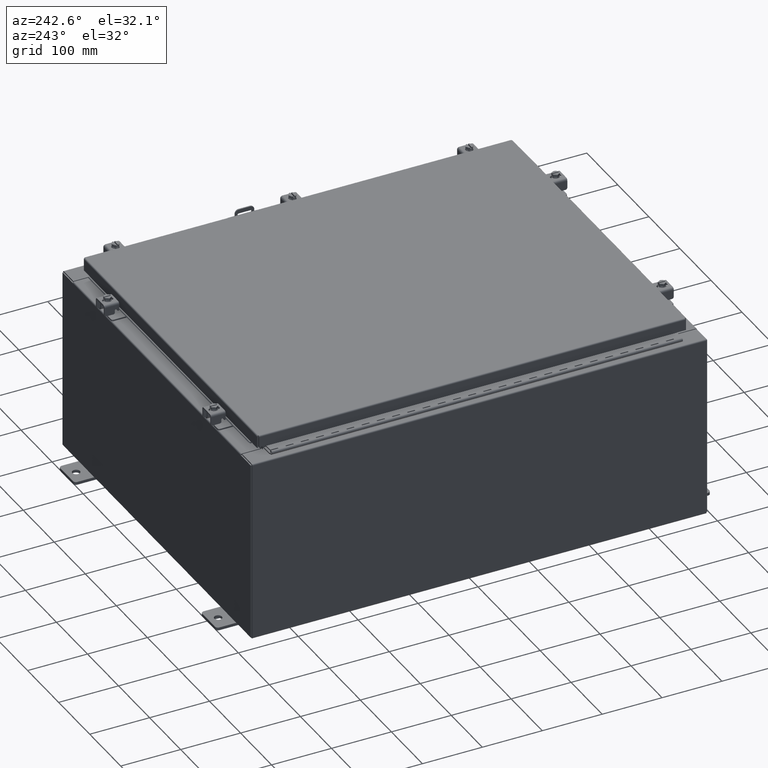
[diagram: clean part render]
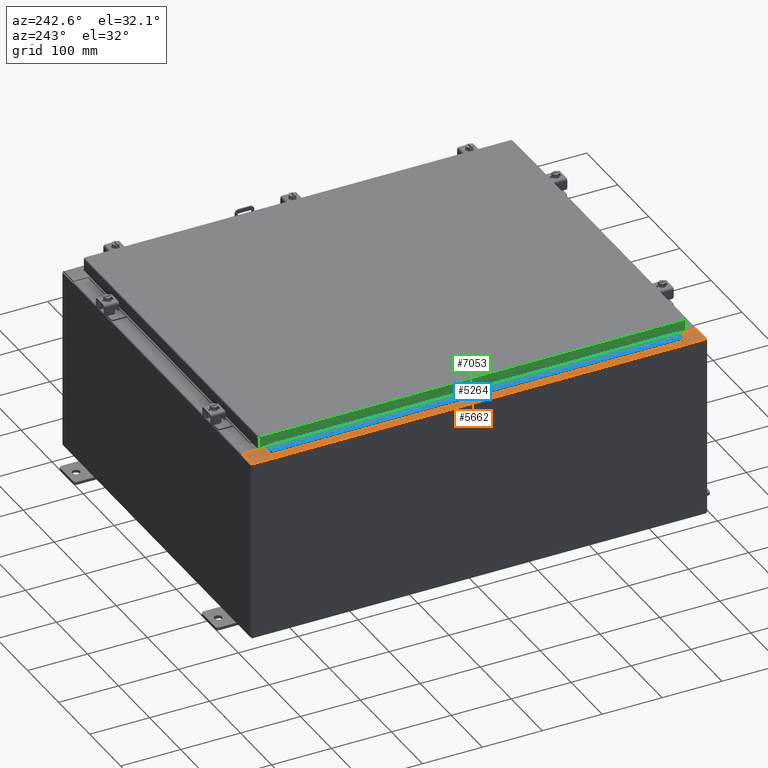
[diagram: same view with three faces highlighted in distinct colors, each labeled with its STEP entity id]
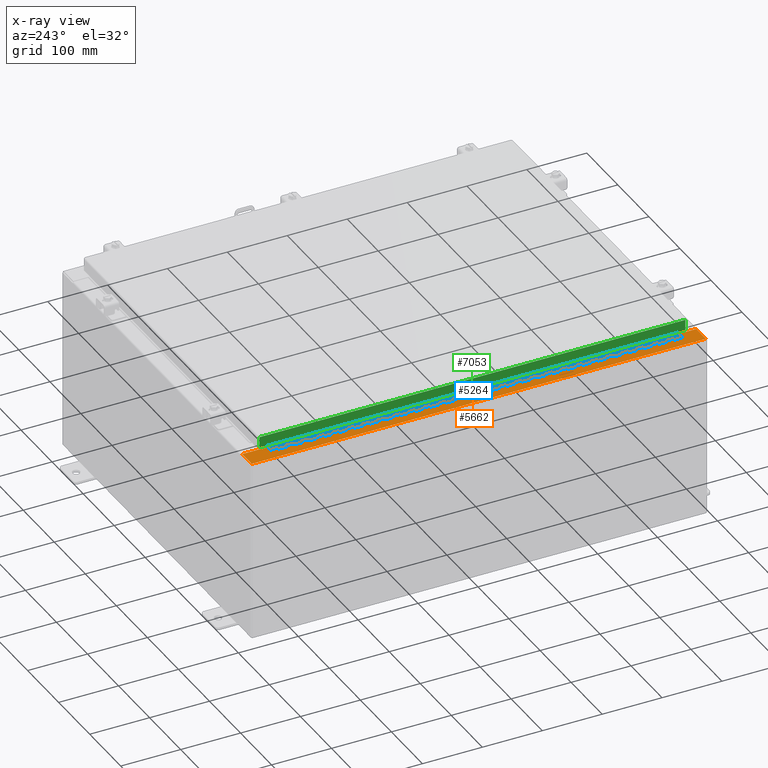
[diagram: x-ray of the same camera — body ghosted, the three highlighted faces saturated]
A machine part, auxiliary view with three faces highlighted in distinct colors.
The next image is the same camera in x-ray (body ghosted, the three faces saturated) — at least one of them is partly hidden behind the body in this view.
Their STEP definitions:

[orange] entity #5662 — the highlighted planar face has unit normal (0, 0, -1).
#957 = AXIS2_PLACEMENT_3D ( 'NONE', #13310, #7814, #4419 ) ;
#1163 = EDGE_CURVE ( 'NONE', #31279, #24333, #28762, .T. ) ;
#1270 = CARTESIAN_POINT ( 'NONE',  ( -10.75005000000005000, 13.59374999999999800, 11.92530000000000900 ) ) ;
#2367 = LINE ( 'NONE', #17380, #2819 ) ;
#2380 = ORIENTED_EDGE ( 'NONE', *, *, #22013, .F. ) ;
#2487 = ORIENTED_EDGE ( 'NONE', *, *, #7257, .F. ) ;
#2819 = VECTOR ( 'NONE', #14252, 39.37007874015748100 ) ;
#3121 = EDGE_CURVE ( 'NONE', #29221, #24333, #17244, .T. ) ;
#3912 = CARTESIAN_POINT ( 'NONE',  ( -10.69970000000004800, 14.92530000000000000, 11.92530000000000900 ) ) ;
#4029 = VECTOR ( 'NONE', #19668, 39.37007874015748100 ) ;
#4419 = DIRECTION ( 'NONE',  ( -1.000000000000000000, 0.0000000000000000000, -7.132762385546384700E-015 ) ) ;
#5662 = ADVANCED_FACE ( 'NONE', ( #10960 ), #18664, .F. ) ;
#6503 = LINE ( 'NONE', #24648, #7437 ) ;
#6684 = ORIENTED_EDGE ( 'NONE', *, *, #30043, .F. ) ;
#7093 = VECTOR ( 'NONE', #34444, 39.37007874015748100 ) ;
#7257 = EDGE_CURVE ( 'NONE', #32391, #29869, #17664, .T. ) ;
#7437 = VECTOR ( 'NONE', #28192, 39.37007874015748100 ) ;
#7814 = DIRECTION ( 'NONE',  ( 7.132762385546384700E-015, 0.0000000000000000000, -1.000000000000000000 ) ) ;
#8028 = ORIENTED_EDGE ( 'NONE', *, *, #28779, .T. ) ;
#8492 = LINE ( 'NONE', #9347, #7093 ) ;
#9316 = CARTESIAN_POINT ( 'NONE',  ( -10.75005000000005000, -13.63109999999999800, 11.92530000000000900 ) ) ;
#9347 = CARTESIAN_POINT ( 'NONE',  ( -10.69970000000004800, 0.0000000000000000000, 11.92530000000000900 ) ) ;
#9754 = VECTOR ( 'NONE', #13338, 39.37007874015748100 ) ;
#9882 = DIRECTION ( 'NONE',  ( -7.132762385546384700E-015, -0.0000000000000000000, 1.000000000000000000 ) ) ;
#10174 = ORIENTED_EDGE ( 'NONE', *, *, #15887, .F. ) ;
#10960 = FACE_OUTER_BOUND ( 'NONE', #25418, .T. ) ;
#11166 = DIRECTION ( 'NONE',  ( 1.000000000000000000, 0.0000000000000000000, 0.0000000000000000000 ) ) ;
#11168 = AXIS2_PLACEMENT_3D ( 'NONE', #27435, #36267, #11166 ) ;
#11406 = DIRECTION ( 'NONE',  ( -1.000000000000000000, -4.340572780399910900E-014, 0.0000000000000000000 ) ) ;
#12190 = VERTEX_POINT ( 'NONE', #22343 ) ;
#12709 = VECTOR ( 'NONE', #19064, 39.37007874015748100 ) ;
#13310 = CARTESIAN_POINT ( 'NONE',  ( -8.532114493236847900E-014, 0.0000000000000000000, 11.92530000000008500 ) ) ;
#13338 = DIRECTION ( 'NONE',  ( 0.0000000000000000000, 1.000000000000000000, 0.0000000000000000000 ) ) ;
#13694 = LINE ( 'NONE', #1270, #4029 ) ;
#14252 = DIRECTION ( 'NONE',  ( -1.000000000000000000, 0.0000000000000000000, 0.0000000000000000000 ) ) ;
#14334 = LINE ( 'NONE', #29076, #9754 ) ;
#14602 = AXIS2_PLACEMENT_3D ( 'NONE', #32620, #9882, #35205 ) ;
#14618 = LINE ( 'NONE', #26627, #15175 ) ;
#14770 = ORIENTED_EDGE ( 'NONE', *, *, #19421, .F. ) ;
#15175 = VECTOR ( 'NONE', #26713, 39.37007874015748100 ) ;
#15887 = EDGE_CURVE ( 'NONE', #36556, #18773, #14618, .T. ) ;
#16782 = VERTEX_POINT ( 'NONE', #37218 ) ;
#17244 = LINE ( 'NONE', #26316, #36140 ) ;
#17380 = CARTESIAN_POINT ( 'NONE',  ( -10.71270000000005000, -13.59375000000000000, 11.92530000000000900 ) ) ;
#17664 = CIRCLE ( 'NONE', #11168, 0.01867499999999949400 ) ;
#18259 = EDGE_CURVE ( 'NONE', #12190, #33323, #2367, .T. ) ;
#18421 = ORIENTED_EDGE ( 'NONE', *, *, #24198, .T. ) ;
#18664 = PLANE ( 'NONE',  #957 ) ;
#18773 = VERTEX_POINT ( 'NONE', #22322 ) ;
#18954 = CARTESIAN_POINT ( 'NONE',  ( -10.71270000000005000, 13.59375000000000000, 11.92530000000000900 ) ) ;
#19064 = DIRECTION ( 'NONE',  ( -0.0000000000000000000, -1.000000000000000000, -0.0000000000000000000 ) ) ;
#19390 = VERTEX_POINT ( 'NONE', #19865 ) ;
#19421 = EDGE_CURVE ( 'NONE', #16782, #32391, #21797, .T. ) ;
#19668 = DIRECTION ( 'NONE',  ( 1.000000000000000000, 0.0000000000000000000, 0.0000000000000000000 ) ) ;
#19865 = CARTESIAN_POINT ( 'NONE',  ( -10.69970000000004800, -14.92530000000000000, 11.92530000000000900 ) ) ;
#20124 = CARTESIAN_POINT ( 'NONE',  ( -10.75005000000005000, 13.59374999999999800, 11.92530000000000900 ) ) ;
#20496 = CARTESIAN_POINT ( 'NONE',  ( -10.75005000000005000, 13.63109999999999600, 11.92530000000000900 ) ) ;
#20847 = EDGE_CURVE ( 'NONE', #29221, #19390, #6503, .T. ) ;
#20953 = CARTESIAN_POINT ( 'NONE',  ( -11.91230000000004600, 14.92530000000000000, 11.92530000000000000 ) ) ;
#21407 = VECTOR ( 'NONE', #11406, 39.37007874015748100 ) ;
#21797 = LINE ( 'NONE', #36981, #21407 ) ;
#22013 = EDGE_CURVE ( 'NONE', #29869, #27558, #13694, .T. ) ;
#22024 = LINE ( 'NONE', #18954, #12709 ) ;
#22322 = CARTESIAN_POINT ( 'NONE',  ( -10.69970000000004800, -13.63110000000000200, 11.92530000000000900 ) ) ;
#22343 = CARTESIAN_POINT ( 'NONE',  ( -10.71270000000005000, -13.59375000000000000, 11.92530000000000900 ) ) ;
#23782 = VECTOR ( 'NONE', #28349, 39.37007874015748100 ) ;
#24044 = ORIENTED_EDGE ( 'NONE', *, *, #34295, .F. ) ;
#24198 = EDGE_CURVE ( 'NONE', #16782, #31279, #8492, .T. ) ;
#24333 = VERTEX_POINT ( 'NONE', #20953 ) ;
#24648 = CARTESIAN_POINT ( 'NONE',  ( -8.532114493236847900E-014, -14.92530000000000000, 11.92530000000008500 ) ) ;
#25122 = CARTESIAN_POINT ( 'NONE',  ( -11.91230000000004600, -14.92530000000000000, 11.92530000000000000 ) ) ;
#25418 = EDGE_LOOP ( 'NONE', ( #14770, #18421, #33478, #34156, #30618, #8028, #10174, #6684, #36841, #24044, #2380, #2487 ) ) ;
#26308 = DIRECTION ( 'NONE',  ( -0.0000000000000000000, 1.000000000000000000, -0.0000000000000000000 ) ) ;
#26316 = CARTESIAN_POINT ( 'NONE',  ( -11.91230000000004600, 14.92530000000000000, 11.92530000000000000 ) ) ;
#26627 = CARTESIAN_POINT ( 'NONE',  ( -10.75005000000005000, -13.63109999999999800, 11.92530000000000900 ) ) ;
#26713 = DIRECTION ( 'NONE',  ( 1.000000000000000000, 0.0000000000000000000, 0.0000000000000000000 ) ) ;
#27435 = CARTESIAN_POINT ( 'NONE',  ( -10.75005000000005000, 13.61242499999999600, 11.92530000000000900 ) ) ;
#27558 = VERTEX_POINT ( 'NONE', #34631 ) ;
#28192 = DIRECTION ( 'NONE',  ( 1.000000000000000000, -0.0000000000000000000, 7.132762385546384700E-015 ) ) ;
#28349 = DIRECTION ( 'NONE',  ( -1.000000000000000000, 0.0000000000000000000, -7.132762385546384700E-015 ) ) ;
#28400 = CARTESIAN_POINT ( 'NONE',  ( -8.532114493236847900E-014, 14.92530000000000000, 11.92530000000008500 ) ) ;
#28762 = LINE ( 'NONE', #28400, #23782 ) ;
#28779 = EDGE_CURVE ( 'NONE', #19390, #18773, #14334, .T. ) ;
#29076 = CARTESIAN_POINT ( 'NONE',  ( -10.69970000000004800, 0.0000000000000000000, 11.92530000000000900 ) ) ;
#29221 = VERTEX_POINT ( 'NONE', #25122 ) ;
#29869 = VERTEX_POINT ( 'NONE', #20124 ) ;
#30043 = EDGE_CURVE ( 'NONE', #33323, #36556, #34360, .T. ) ;
#30618 = ORIENTED_EDGE ( 'NONE', *, *, #20847, .T. ) ;
#31279 = VERTEX_POINT ( 'NONE', #3912 ) ;
#32391 = VERTEX_POINT ( 'NONE', #20496 ) ;
#32620 = CARTESIAN_POINT ( 'NONE',  ( -10.75005000000005000, -13.61242500000000000, 11.92530000000000900 ) ) ;
#33323 = VERTEX_POINT ( 'NONE', #37743 ) ;
#33478 = ORIENTED_EDGE ( 'NONE', *, *, #1163, .T. ) ;
#34156 = ORIENTED_EDGE ( 'NONE', *, *, #3121, .F. ) ;
#34295 = EDGE_CURVE ( 'NONE', #27558, #12190, #22024, .T. ) ;
#34360 = CIRCLE ( 'NONE', #14602, 0.01867499999999949400 ) ;
#34444 = DIRECTION ( 'NONE',  ( 0.0000000000000000000, 1.000000000000000000, 0.0000000000000000000 ) ) ;
#34631 = CARTESIAN_POINT ( 'NONE',  ( -10.71270000000005000, 13.59374999999999800, 11.92530000000000900 ) ) ;
#35205 = DIRECTION ( 'NONE',  ( 1.000000000000000000, 0.0000000000000000000, 0.0000000000000000000 ) ) ;
#36140 = VECTOR ( 'NONE', #26308, 39.37007874015748100 ) ;
#36267 = DIRECTION ( 'NONE',  ( -7.132762385546384700E-015, -0.0000000000000000000, 1.000000000000000000 ) ) ;
#36556 = VERTEX_POINT ( 'NONE', #9316 ) ;
#36841 = ORIENTED_EDGE ( 'NONE', *, *, #18259, .F. ) ;
#36981 = CARTESIAN_POINT ( 'NONE',  ( -10.69970000000004800, 13.63109999999999800, 11.92530000000000900 ) ) ;
#37218 = CARTESIAN_POINT ( 'NONE',  ( -10.69970000000004800, 13.63109999999999800, 11.92530000000000900 ) ) ;
#37743 = CARTESIAN_POINT ( 'NONE',  ( -10.75005000000005000, -13.59375000000000000, 11.92530000000000900 ) ) ;

[blue] entity #5264 — the highlighted planar face has unit normal (-0, -0, 1).
#46 = DIRECTION ( 'NONE',  ( 3.389037039080723100E-015, 1.000000000000000000, -0.0000000000000000000 ) ) ;
#51 = EDGE_CURVE ( 'NONE', #13973, #22612, #12109, .T. ) ;
#83 = VERTEX_POINT ( 'NONE', #1653 ) ;
#305 = EDGE_CURVE ( 'NONE', #9722, #10773, #27180, .T. ) ;
#356 = EDGE_CURVE ( 'NONE', #15206, #31780, #29818, .T. ) ;
#405 = CARTESIAN_POINT ( 'NONE',  ( -0.6869999999999982800, 0.5504999999999997700, -4.000000000000000000 ) ) ;
#416 = EDGE_CURVE ( 'NONE', #5087, #11043, #36227, .T. ) ;
#431 = CARTESIAN_POINT ( 'NONE',  ( -0.6869999999999978300, 0.6754999999999996600, 0.0000000000000000000 ) ) ;
#446 = AXIS2_PLACEMENT_3D ( 'NONE', #14453, #12408, #8151 ) ;
#529 = EDGE_CURVE ( 'NONE', #14605, #6282, #19822, .T. ) ;
#646 = CARTESIAN_POINT ( 'NONE',  ( -0.6869999999999982800, 0.5504999999999997700, -13.50000000000000000 ) ) ;
#715 = CARTESIAN_POINT ( 'NONE',  ( -0.6869999999999978300, 0.6754999999999996600, -26.50000000000000400 ) ) ;
#808 = CARTESIAN_POINT ( 'NONE',  ( -0.6869999999999982800, 0.5504999999999997700, -20.50000000000000400 ) ) ;
#832 = LINE ( 'NONE', #15081, #37842 ) ;
#842 = LINE ( 'NONE', #9604, #10577 ) ;
#897 = ORIENTED_EDGE ( 'NONE', *, *, #13867, .T. ) ;
#921 = DIRECTION ( 'NONE',  ( 0.0000000000000000000, 0.0000000000000000000, 1.000000000000000000 ) ) ;
#1027 = ORIENTED_EDGE ( 'NONE', *, *, #28355, .T. ) ;
#1156 = ORIENTED_EDGE ( 'NONE', *, *, #10670, .T. ) ;
#1168 = VERTEX_POINT ( 'NONE', #27069 ) ;
#1186 = DIRECTION ( 'NONE',  ( -3.389037039080723100E-015, -1.000000000000000000, 0.0000000000000000000 ) ) ;
#1237 = LINE ( 'NONE', #22951, #30578 ) ;
#1279 = EDGE_CURVE ( 'NONE', #37281, #20590, #27692, .T. ) ;
#1280 = EDGE_CURVE ( 'NONE', #28824, #1168, #36361, .T. ) ;
#1292 = ORIENTED_EDGE ( 'NONE', *, *, #20859, .F. ) ;
#1305 = CARTESIAN_POINT ( 'NONE',  ( -0.6869999999999973900, 0.8004999999999995500, -21.50000000000000400 ) ) ;
#1306 = DIRECTION ( 'NONE',  ( -3.389037039080723100E-015, -1.000000000000000000, 0.0000000000000000000 ) ) ;
#1307 = ORIENTED_EDGE ( 'NONE', *, *, #16616, .T. ) ;
#1310 = LINE ( 'NONE', #19426, #7872 ) ;
#1317 = VECTOR ( 'NONE', #10348, 39.37007874015748100 ) ;
#1336 = CARTESIAN_POINT ( 'NONE',  ( -0.6869999999999973900, 0.8004999999999995500, -16.00000000000000000 ) ) ;
#1351 = CARTESIAN_POINT ( 'NONE',  ( -0.6869999999999978300, 0.6754999999999996600, -27.00000000000000000 ) ) ;
#1353 = ORIENTED_EDGE ( 'NONE', *, *, #6908, .F. ) ;
#1401 = VECTOR ( 'NONE', #14924, 39.37007874015748100 ) ;
#1427 = VECTOR ( 'NONE', #6928, 39.37007874015748100 ) ;
#1451 = ORIENTED_EDGE ( 'NONE', *, *, #14619, .T. ) ;
#1458 = VECTOR ( 'NONE', #27333, 39.37007874015748100 ) ;
#1559 = CARTESIAN_POINT ( 'NONE',  ( -0.6869999999999978300, 0.6754999999999996600, -27.00000000000000000 ) ) ;
#1593 = VECTOR ( 'NONE', #32881, 39.37007874015748100 ) ;
#1607 = ORIENTED_EDGE ( 'NONE', *, *, #20616, .F. ) ;
#1653 = CARTESIAN_POINT ( 'NONE',  ( -0.6869999999999978300, 0.6754999999999996600, -2.500000000000000000 ) ) ;
#1658 = DIRECTION ( 'NONE',  ( -3.389037039080723100E-015, -1.000000000000000000, 0.0000000000000000000 ) ) ;
#1722 = CARTESIAN_POINT ( 'NONE',  ( -0.6869999999999978300, 0.6754999999999996600, -27.00000000000000000 ) ) ;
#1771 = CARTESIAN_POINT ( 'NONE',  ( -0.6869999999999982800, 0.5504999999999997700, -0.5000000000000000000 ) ) ;
#1821 = VECTOR ( 'NONE', #11572, 39.37007874015748100 ) ;
#1831 = ORIENTED_EDGE ( 'NONE', *, *, #12259, .F. ) ;
#1837 = EDGE_CURVE ( 'NONE', #10773, #11046, #28326, .T. ) ;
#1904 = CARTESIAN_POINT ( 'NONE',  ( -0.6869999999999982800, 0.5504999999999997700, -14.99999999999999800 ) ) ;
#1920 = CARTESIAN_POINT ( 'NONE',  ( -0.6869999999999973900, 0.8004999999999995500, -12.49999999999999800 ) ) ;
#2023 = EDGE_CURVE ( 'NONE', #10438, #33674, #34894, .T. ) ;
#2024 = ORIENTED_EDGE ( 'NONE', *, *, #24088, .F. ) ;
#2060 = CARTESIAN_POINT ( 'NONE',  ( -0.6869999999999982800, 0.5504999999999997700, -14.49999999999999800 ) ) ;
#2121 = LINE ( 'NONE', #36820, #1317 ) ;
#2220 = VECTOR ( 'NONE', #5639, 39.37007874015748100 ) ;
#2244 = CARTESIAN_POINT ( 'NONE',  ( -0.6869999999999982800, 0.5504999999999997700, -23.50000000000000000 ) ) ;
#2310 = VECTOR ( 'NONE', #13779, 39.37007874015748100 ) ;
#2332 = VECTOR ( 'NONE', #14450, 39.37007874015748100 ) ;
#2434 = ORIENTED_EDGE ( 'NONE', *, *, #36924, .F. ) ;
#2526 = LINE ( 'NONE', #19194, #2220 ) ;
#2593 = ORIENTED_EDGE ( 'NONE', *, *, #34865, .F. ) ;
#2619 = EDGE_CURVE ( 'NONE', #27440, #5261, #3447, .T. ) ;
#2695 = CARTESIAN_POINT ( 'NONE',  ( -0.6869999999999982800, 0.5504999999999997700, -12.49999999999999800 ) ) ;
#2736 = VECTOR ( 'NONE', #20181, 39.37007874015748100 ) ;
#2773 = ORIENTED_EDGE ( 'NONE', *, *, #22515, .F. ) ;
#2813 = CARTESIAN_POINT ( 'NONE',  ( -0.6869999999999982800, 0.5504999999999997700, -17.00000000000000000 ) ) ;
#2865 = ORIENTED_EDGE ( 'NONE', *, *, #36522, .F. ) ;
#2887 = ORIENTED_EDGE ( 'NONE', *, *, #2910, .F. ) ;
#2910 = EDGE_CURVE ( 'NONE', #21828, #32658, #18317, .T. ) ;
#2965 = CARTESIAN_POINT ( 'NONE',  ( -0.6869999999999973900, 0.8004999999999995500, -20.00000000000000000 ) ) ;
#2967 = CARTESIAN_POINT ( 'NONE',  ( -0.6869999999999982800, 0.5504999999999997700, -2.999999999999999600 ) ) ;
#3088 = CARTESIAN_POINT ( 'NONE',  ( -0.6869999999999998300, 0.07549999999999991400, -27.00000000000000000 ) ) ;
#3103 = VECTOR ( 'NONE', #6382, 39.37007874015748100 ) ;
#3118 = LINE ( 'NONE', #16415, #18967 ) ;
#3135 = LINE ( 'NONE', #6025, #3103 ) ;
#3174 = ORIENTED_EDGE ( 'NONE', *, *, #30790, .F. ) ;
#3175 = DIRECTION ( 'NONE',  ( 0.0000000000000000000, 0.0000000000000000000, 1.000000000000000000 ) ) ;
#3226 = CARTESIAN_POINT ( 'NONE',  ( -0.6869999999999978300, 0.6754999999999996600, -16.50000000000000000 ) ) ;
#3256 = CARTESIAN_POINT ( 'NONE',  ( -0.6869999999999982800, 0.5504999999999997700, -11.00000000000000000 ) ) ;
#3314 = DIRECTION ( 'NONE',  ( -3.389037039080723100E-015, -1.000000000000000000, 0.0000000000000000000 ) ) ;
#3328 = ORIENTED_EDGE ( 'NONE', *, *, #26706, .F. ) ;
#3339 = VECTOR ( 'NONE', #13433, 39.37007874015748100 ) ;
#3351 = CARTESIAN_POINT ( 'NONE',  ( -0.6869999999999973900, 0.8004999999999995500, -24.99999999999999600 ) ) ;
#3414 = LINE ( 'NONE', #18905, #3339 ) ;
#3447 = LINE ( 'NONE', #8512, #10977 ) ;
#3455 = VECTOR ( 'NONE', #36343, 39.37007874015748100 ) ;
#3500 = EDGE_CURVE ( 'NONE', #11555, #13221, #27501, .T. ) ;
#3514 = LINE ( 'NONE', #9680, #10798 ) ;
#3650 = CARTESIAN_POINT ( 'NONE',  ( -0.6869999999999978300, 0.6754999999999996600, -27.00000000000000000 ) ) ;
#3656 = VERTEX_POINT ( 'NONE', #21409 ) ;
#3700 = DIRECTION ( 'NONE',  ( 0.0000000000000000000, -0.0000000000000000000, -1.000000000000000000 ) ) ;
#3709 = DIRECTION ( 'NONE',  ( 0.0000000000000000000, 0.0000000000000000000, 1.000000000000000000 ) ) ;
#3737 = EDGE_CURVE ( 'NONE', #35291, #18518, #27130, .T. ) ;
#3794 = DIRECTION ( 'NONE',  ( 0.0000000000000000000, 0.0000000000000000000, 1.000000000000000000 ) ) ;
#3795 = CARTESIAN_POINT ( 'NONE',  ( -0.6869999999999978300, 0.6754999999999996600, -27.00000000000000000 ) ) ;
#3840 = EDGE_CURVE ( 'NONE', #8994, #9665, #15399, .T. ) ;
#3878 = CARTESIAN_POINT ( 'NONE',  ( -0.6869999999999982800, 0.5504999999999997700, -1.499999999999999800 ) ) ;
#3951 = VECTOR ( 'NONE', #11926, 39.37007874015748100 ) ;
#4062 = CARTESIAN_POINT ( 'NONE',  ( -0.6869999999999982800, 0.5504999999999997700, -17.50000000000000000 ) ) ;
#4212 = ORIENTED_EDGE ( 'NONE', *, *, #22649, .F. ) ;
#4278 = CARTESIAN_POINT ( 'NONE',  ( -0.6869999999999978300, 0.6754999999999996600, -23.50000000000000000 ) ) ;
#4338 = VECTOR ( 'NONE', #9975, 39.37007874015748100 ) ;
#4387 = CARTESIAN_POINT ( 'NONE',  ( -0.6869999999999982800, 0.5504999999999997700, -12.99999999999999800 ) ) ;
#4427 = VECTOR ( 'NONE', #15605, 39.37007874015748100 ) ;
#4486 = VECTOR ( 'NONE', #27618, 39.37007874015748100 ) ;
#4579 = LINE ( 'NONE', #2965, #4338 ) ;
#4615 = VECTOR ( 'NONE', #27925, 39.37007874015748100 ) ;
#4630 = CARTESIAN_POINT ( 'NONE',  ( -0.6869999999999978300, 0.6754999999999996600, -7.499999999999999100 ) ) ;
#4658 = ORIENTED_EDGE ( 'NONE', *, *, #13242, .T. ) ;
#4686 = LINE ( 'NONE', #16046, #4615 ) ;
#4717 = CARTESIAN_POINT ( 'NONE',  ( -0.6869999999999978300, 0.6754999999999996600, -1.499999999999999800 ) ) ;
#4726 = VERTEX_POINT ( 'NONE', #12639 ) ;
#4758 = LINE ( 'NONE', #9910, #13491 ) ;
#4859 = VECTOR ( 'NONE', #28820, 39.37007874015748100 ) ;
#4877 = ORIENTED_EDGE ( 'NONE', *, *, #305, .F. ) ;
#4963 = ORIENTED_EDGE ( 'NONE', *, *, #11056, .F. ) ;
#4964 = CARTESIAN_POINT ( 'NONE',  ( -0.6869999999999973900, 0.8004999999999995500, -23.50000000000000000 ) ) ;
#5027 = LINE ( 'NONE', #17885, #36427 ) ;
#5087 = VERTEX_POINT ( 'NONE', #3256 ) ;
#5108 = LINE ( 'NONE', #13654, #24979 ) ;
#5114 = CARTESIAN_POINT ( 'NONE',  ( -0.6869999999999978300, 0.6754999999999996600, -16.00000000000000000 ) ) ;
#5156 = CARTESIAN_POINT ( 'NONE',  ( -0.6869999999999982800, 0.5504999999999997700, -17.99999999999999600 ) ) ;
#5181 = ORIENTED_EDGE ( 'NONE', *, *, #26256, .F. ) ;
#5195 = ORIENTED_EDGE ( 'NONE', *, *, #23821, .F. ) ;
#5222 = LINE ( 'NONE', #16692, #3951 ) ;
#5242 = CARTESIAN_POINT ( 'NONE',  ( -0.6869999999999982800, 0.5504999999999997700, -3.500000000000000000 ) ) ;
#5261 = VERTEX_POINT ( 'NONE', #2813 ) ;
#5264 = ADVANCED_FACE ( 'NONE', ( #14930 ), #20854, .T. ) ;
#5296 = LINE ( 'NONE', #15454, #25435 ) ;
#5399 = EDGE_CURVE ( 'NONE', #5261, #15712, #6178, .T. ) ;
#5499 = CARTESIAN_POINT ( 'NONE',  ( -0.6869999999999973900, 0.8004999999999995500, -15.50000000000000000 ) ) ;
#5510 = CARTESIAN_POINT ( 'NONE',  ( -0.6869999999999982800, 0.5504999999999997700, -20.00000000000000000 ) ) ;
#5513 = EDGE_CURVE ( 'NONE', #34915, #15827, #13187, .T. ) ;
#5582 = LINE ( 'NONE', #31435, #5999 ) ;
#5625 = CARTESIAN_POINT ( 'NONE',  ( -0.6869999999999973900, 0.8004999999999995500, -17.50000000000000000 ) ) ;
#5639 = DIRECTION ( 'NONE',  ( 0.0000000000000000000, 0.0000000000000000000, 1.000000000000000000 ) ) ;
#5746 = LINE ( 'NONE', #1559, #26563 ) ;
#5789 = VECTOR ( 'NONE', #36298, 39.37007874015748100 ) ;
#5825 = ORIENTED_EDGE ( 'NONE', *, *, #31801, .F. ) ;
#5857 = VECTOR ( 'NONE', #8931, 39.37007874015748100 ) ;
#5903 = DIRECTION ( 'NONE',  ( -3.389037039080723100E-015, -1.000000000000000000, 0.0000000000000000000 ) ) ;
#5999 = VECTOR ( 'NONE', #27859, 39.37007874015748100 ) ;
#6025 = CARTESIAN_POINT ( 'NONE',  ( -0.6869999999999973900, 0.8004999999999995500, -4.500000000000000000 ) ) ;
#6051 = VECTOR ( 'NONE', #13712, 39.37007874015748100 ) ;
#6070 = ORIENTED_EDGE ( 'NONE', *, *, #28215, .F. ) ;
#6118 = LINE ( 'NONE', #15159, #1427 ) ;
#6133 = CARTESIAN_POINT ( 'NONE',  ( -0.6869999999999973900, 0.8004999999999995500, -25.50000000000000400 ) ) ;
#6168 = ORIENTED_EDGE ( 'NONE', *, *, #529, .F. ) ;
#6178 = LINE ( 'NONE', #7341, #1401 ) ;
#6227 = ORIENTED_EDGE ( 'NONE', *, *, #16613, .F. ) ;
#6229 = ORIENTED_EDGE ( 'NONE', *, *, #18434, .F. ) ;
#6282 = VERTEX_POINT ( 'NONE', #15073 ) ;
#6298 = LINE ( 'NONE', #3351, #1458 ) ;
#6312 = CARTESIAN_POINT ( 'NONE',  ( -0.6869999999999978300, 0.6754999999999996600, -6.000000000000000900 ) ) ;
#6336 = LINE ( 'NONE', #3795, #17926 ) ;
#6346 = ORIENTED_EDGE ( 'NONE', *, *, #37146, .F. ) ;
#6347 = DIRECTION ( 'NONE',  ( 0.0000000000000000000, -0.0000000000000000000, -1.000000000000000000 ) ) ;
#6374 = LINE ( 'NONE', #24084, #18733 ) ;
#6382 = DIRECTION ( 'NONE',  ( -3.389037039080723100E-015, -1.000000000000000000, 0.0000000000000000000 ) ) ;
#6423 = DIRECTION ( 'NONE',  ( 3.389037039080723100E-015, 1.000000000000000000, -0.0000000000000000000 ) ) ;
#6490 = CARTESIAN_POINT ( 'NONE',  ( -0.6869999999999978300, 0.6754999999999996600, -8.500000000000000000 ) ) ;
#6686 = VERTEX_POINT ( 'NONE', #23940 ) ;
#6709 = VECTOR ( 'NONE', #36197, 39.37007874015748100 ) ;
#6743 = VECTOR ( 'NONE', #26915, 39.37007874015748100 ) ;
#6903 = LINE ( 'NONE', #21400, #8301 ) ;
#6908 = EDGE_CURVE ( 'NONE', #31000, #17090, #20754, .T. ) ;
#6927 = CARTESIAN_POINT ( 'NONE',  ( -0.6869999999999982800, 0.5504999999999997700, -15.50000000000000000 ) ) ;
#6928 = DIRECTION ( 'NONE',  ( 3.389037039080723100E-015, 1.000000000000000000, -0.0000000000000000000 ) ) ;
#6930 = EDGE_CURVE ( 'NONE', #35057, #33517, #31923, .T. ) ;
#6985 = VECTOR ( 'NONE', #26311, 39.37007874015748100 ) ;
#6987 = VERTEX_POINT ( 'NONE', #15158 ) ;
#7035 = DIRECTION ( 'NONE',  ( 0.0000000000000000000, -0.0000000000000000000, -1.000000000000000000 ) ) ;
#7156 = CARTESIAN_POINT ( 'NONE',  ( -0.6869999999999973900, 0.8004999999999995500, -4.000000000000000000 ) ) ;
#7158 = VECTOR ( 'NONE', #37838, 39.37007874015748100 ) ;
#7212 = DIRECTION ( 'NONE',  ( 3.389037039080723100E-015, 1.000000000000000000, -0.0000000000000000000 ) ) ;
#7229 = LINE ( 'NONE', #37792, #7158 ) ;
#7243 = CARTESIAN_POINT ( 'NONE',  ( -0.6869999999999978300, 0.6754999999999996600, -21.50000000000000400 ) ) ;
#7269 = LINE ( 'NONE', #37758, #6709 ) ;
#7341 = CARTESIAN_POINT ( 'NONE',  ( -0.6869999999999973900, 0.8004999999999995500, -17.00000000000000000 ) ) ;
#7493 = CARTESIAN_POINT ( 'NONE',  ( -0.6869999999999982800, 0.5504999999999997700, -11.50000000000000000 ) ) ;
#7518 = EDGE_CURVE ( 'NONE', #21804, #15206, #5108, .T. ) ;
#7693 = ORIENTED_EDGE ( 'NONE', *, *, #10519, .T. ) ;
#7765 = CARTESIAN_POINT ( 'NONE',  ( -0.6869999999999982800, 0.5504999999999997700, -22.00000000000000000 ) ) ;
#7781 = VECTOR ( 'NONE', #31077, 39.37007874015748100 ) ;
#7807 = LINE ( 'NONE', #21755, #8599 ) ;
#7872 = VECTOR ( 'NONE', #1306, 39.37007874015748100 ) ;
#7897 = EDGE_CURVE ( 'NONE', #17211, #37205, #6374, .T. ) ;
#7911 = CARTESIAN_POINT ( 'NONE',  ( -0.6869999999999978300, 0.6754999999999996600, -17.50000000000000000 ) ) ;
#7914 = CARTESIAN_POINT ( 'NONE',  ( -0.6869999999999982800, 0.5504999999999997700, -17.50000000000000000 ) ) ;
#7987 = VERTEX_POINT ( 'NONE', #5242 ) ;
#8151 = DIRECTION ( 'NONE',  ( 3.369016658928398200E-015, 1.000000000000000000, 0.0000000000000000000 ) ) ;
#8301 = VECTOR ( 'NONE', #32272, 39.37007874015748100 ) ;
#8357 = LINE ( 'NONE', #28340, #7781 ) ;
#8370 = VERTEX_POINT ( 'NONE', #23954 ) ;
#8380 = LINE ( 'NONE', #31327, #36283 ) ;
#8393 = VERTEX_POINT ( 'NONE', #18109 ) ;
#8512 = CARTESIAN_POINT ( 'NONE',  ( -0.6869999999999982800, 0.5504999999999997700, -16.50000000000000000 ) ) ;
#8578 = CARTESIAN_POINT ( 'NONE',  ( -0.6869999999999973900, 0.8004999999999995500, -5.500000000000000000 ) ) ;
#8583 = EDGE_CURVE ( 'NONE', #18582, #35864, #24072, .T. ) ;
#8596 = CARTESIAN_POINT ( 'NONE',  ( -0.6869999999999982800, 0.5504999999999997700, -9.000000000000000000 ) ) ;
#8599 = VECTOR ( 'NONE', #6347, 39.37007874015748100 ) ;
#8619 = VERTEX_POINT ( 'NONE', #10902 ) ;
#8697 = ORIENTED_EDGE ( 'NONE', *, *, #1279, .F. ) ;
#8725 = LINE ( 'NONE', #2695, #18732 ) ;
#8777 = CARTESIAN_POINT ( 'NONE',  ( -0.6869999999999982800, 0.5504999999999997700, -11.99999999999999800 ) ) ;
#8797 = CARTESIAN_POINT ( 'NONE',  ( -0.6869999999999982800, 0.5504999999999997700, -25.50000000000000400 ) ) ;
#8809 = ORIENTED_EDGE ( 'NONE', *, *, #17871, .F. ) ;
#8931 = DIRECTION ( 'NONE',  ( 0.0000000000000000000, 0.0000000000000000000, 1.000000000000000000 ) ) ;
#8965 = ORIENTED_EDGE ( 'NONE', *, *, #18541, .F. ) ;
#8994 = VERTEX_POINT ( 'NONE', #1904 ) ;
#9103 = ORIENTED_EDGE ( 'NONE', *, *, #32567, .T. ) ;
#9124 = CARTESIAN_POINT ( 'NONE',  ( -0.6869999999999973900, 0.8004999999999995500, -8.000000000000000000 ) ) ;
#9165 = ORIENTED_EDGE ( 'NONE', *, *, #25021, .F. ) ;
#9485 = VERTEX_POINT ( 'NONE', #15897 ) ;
#9500 = VECTOR ( 'NONE', #29743, 39.37007874015748100 ) ;
#9604 = CARTESIAN_POINT ( 'NONE',  ( -0.6869999999999973900, 0.8004999999999995500, -24.50000000000000000 ) ) ;
#9613 = VECTOR ( 'NONE', #1186, 39.37007874015748100 ) ;
#9646 = CARTESIAN_POINT ( 'NONE',  ( -0.6869999999999978300, 0.6754999999999996600, -17.99999999999999600 ) ) ;
#9665 = VERTEX_POINT ( 'NONE', #37446 ) ;
#9680 = CARTESIAN_POINT ( 'NONE',  ( -0.6869999999999973900, 0.8004999999999995500, -6.499999999999999100 ) ) ;
#9695 = VERTEX_POINT ( 'NONE', #37103 ) ;
#9722 = VERTEX_POINT ( 'NONE', #35693 ) ;
#9753 = LINE ( 'NONE', #22238, #2332 ) ;
#9762 = VECTOR ( 'NONE', #12588, 39.37007874015748100 ) ;
#9773 = ORIENTED_EDGE ( 'NONE', *, *, #35584, .T. ) ;
#9876 = ORIENTED_EDGE ( 'NONE', *, *, #15221, .F. ) ;
#9893 = CARTESIAN_POINT ( 'NONE',  ( -0.6869999999999982800, 0.5504999999999997700, -21.50000000000000400 ) ) ;
#9910 = CARTESIAN_POINT ( 'NONE',  ( -0.6869999999999982800, 0.5504999999999997700, -2.500000000000000000 ) ) ;
#9975 = DIRECTION ( 'NONE',  ( 3.389037039080723100E-015, 1.000000000000000000, -0.0000000000000000000 ) ) ;
#10014 = ORIENTED_EDGE ( 'NONE', *, *, #28459, .F. ) ;
#10106 = CARTESIAN_POINT ( 'NONE',  ( -0.6869999999999973900, 0.8004999999999995500, -19.50000000000000000 ) ) ;
#10317 = CARTESIAN_POINT ( 'NONE',  ( -0.6869999999999978300, 0.6754999999999996600, -24.50000000000000000 ) ) ;
#10348 = DIRECTION ( 'NONE',  ( -3.389037039080723100E-015, -1.000000000000000000, 0.0000000000000000000 ) ) ;
#10374 = CARTESIAN_POINT ( 'NONE',  ( -0.6869999999999973900, 0.8004999999999995500, -1.000000000000000000 ) ) ;
#10398 = ORIENTED_EDGE ( 'NONE', *, *, #33338, .F. ) ;
#10438 = VERTEX_POINT ( 'NONE', #7911 ) ;
#10519 = EDGE_CURVE ( 'NONE', #10438, #15712, #28090, .T. ) ;
#10536 = LINE ( 'NONE', #12311, #10907 ) ;
#10577 = VECTOR ( 'NONE', #16417, 39.37007874015748100 ) ;
#10638 = VECTOR ( 'NONE', #16328, 39.37007874015748100 ) ;
#10670 = EDGE_CURVE ( 'NONE', #17179, #11046, #6336, .T. ) ;
#10697 = ORIENTED_EDGE ( 'NONE', *, *, #32553, .T. ) ;
#10760 = VECTOR ( 'NONE', #29883, 39.37007874015748100 ) ;
#10771 = LINE ( 'NONE', #11114, #27274 ) ;
#10773 = VERTEX_POINT ( 'NONE', #14363 ) ;
#10798 = VECTOR ( 'NONE', #14946, 39.37007874015748100 ) ;
#10898 = LINE ( 'NONE', #20629, #12771 ) ;
#10902 = CARTESIAN_POINT ( 'NONE',  ( -0.6869999999999982800, 0.5504999999999997700, -19.00000000000000000 ) ) ;
#10907 = VECTOR ( 'NONE', #15535, 39.37007874015748100 ) ;
#10931 = EDGE_CURVE ( 'NONE', #17489, #16049, #842, .T. ) ;
#10977 = VECTOR ( 'NONE', #11505, 39.37007874015748100 ) ;
#11043 = VERTEX_POINT ( 'NONE', #25119 ) ;
#11046 = VERTEX_POINT ( 'NONE', #24871 ) ;
#11056 = EDGE_CURVE ( 'NONE', #15827, #4726, #19762, .T. ) ;
#11114 = CARTESIAN_POINT ( 'NONE',  ( -0.6869999999999973900, 0.8004999999999995500, -12.99999999999999800 ) ) ;
#11155 = VERTEX_POINT ( 'NONE', #13731 ) ;
#11183 = CARTESIAN_POINT ( 'NONE',  ( -0.6869999999999978300, 0.6754999999999996600, -10.50000000000000000 ) ) ;
#11337 = VERTEX_POINT ( 'NONE', #36760 ) ;
#11353 = EDGE_CURVE ( 'NONE', #32033, #28621, #35607, .T. ) ;
#11381 = ORIENTED_EDGE ( 'NONE', *, *, #2023, .F. ) ;
#11505 = DIRECTION ( 'NONE',  ( 0.0000000000000000000, -0.0000000000000000000, -1.000000000000000000 ) ) ;
#11555 = VERTEX_POINT ( 'NONE', #22508 ) ;
#11569 = CARTESIAN_POINT ( 'NONE',  ( -0.6869999999999982800, 0.5504999999999997700, -3.500000000000000000 ) ) ;
#11572 = DIRECTION ( 'NONE',  ( 3.389037039080723100E-015, 1.000000000000000000, -0.0000000000000000000 ) ) ;
#11639 = CARTESIAN_POINT ( 'NONE',  ( -0.6869999999999982800, 0.5504999999999997700, -4.500000000000000000 ) ) ;
#11654 = ORIENTED_EDGE ( 'NONE', *, *, #29204, .F. ) ;
#11726 = EDGE_CURVE ( 'NONE', #19104, #9695, #6298, .T. ) ;
#11748 = ORIENTED_EDGE ( 'NONE', *, *, #31522, .F. ) ;
#11792 = CARTESIAN_POINT ( 'NONE',  ( -0.6869999999999978300, 0.6754999999999996600, -23.00000000000000000 ) ) ;
#11842 = VECTOR ( 'NONE', #33715, 39.37007874015748100 ) ;
#11854 = ORIENTED_EDGE ( 'NONE', *, *, #17215, .T. ) ;
#11909 = VERTEX_POINT ( 'NONE', #28372 ) ;
#11926 = DIRECTION ( 'NONE',  ( -3.389037039080723100E-015, -1.000000000000000000, 0.0000000000000000000 ) ) ;
#11980 = CARTESIAN_POINT ( 'NONE',  ( -0.6869999999999973900, 0.8004999999999995500, -13.50000000000000000 ) ) ;
#12008 = DIRECTION ( 'NONE',  ( 3.389037039080723100E-015, 1.000000000000000000, -0.0000000000000000000 ) ) ;
#12056 = ORIENTED_EDGE ( 'NONE', *, *, #3840, .F. ) ;
#12087 = ORIENTED_EDGE ( 'NONE', *, *, #35035, .F. ) ;
#12109 = LINE ( 'NONE', #1920, #22570 ) ;
#12259 = EDGE_CURVE ( 'NONE', #6282, #5087, #35251, .T. ) ;
#12311 = CARTESIAN_POINT ( 'NONE',  ( -0.6869999999999973900, 0.8004999999999995500, -10.00000000000000000 ) ) ;
#12349 = ORIENTED_EDGE ( 'NONE', *, *, #7518, .F. ) ;
#12398 = LINE ( 'NONE', #8578, #22434 ) ;
#12408 = DIRECTION ( 'NONE',  ( 1.000000000000000000, -3.369016658928398200E-015, 0.0000000000000000000 ) ) ;
#12493 = CARTESIAN_POINT ( 'NONE',  ( -0.6869999999999998300, 0.07549999999999991400, 0.0000000000000000000 ) ) ;
#12588 = DIRECTION ( 'NONE',  ( 0.0000000000000000000, -0.0000000000000000000, -1.000000000000000000 ) ) ;
#12639 = CARTESIAN_POINT ( 'NONE',  ( -0.6869999999999978300, 0.6754999999999996600, -5.000000000000000000 ) ) ;
#12771 = VECTOR ( 'NONE', #27567, 39.37007874015748100 ) ;
#12811 = DIRECTION ( 'NONE',  ( 0.0000000000000000000, 0.0000000000000000000, 1.000000000000000000 ) ) ;
#13107 = ORIENTED_EDGE ( 'NONE', *, *, #31461, .F. ) ;
#13138 = DIRECTION ( 'NONE',  ( -3.389037039080723100E-015, -1.000000000000000000, 0.0000000000000000000 ) ) ;
#13187 = LINE ( 'NONE', #11639, #9762 ) ;
#13190 = ORIENTED_EDGE ( 'NONE', *, *, #416, .F. ) ;
#13221 = VERTEX_POINT ( 'NONE', #13786 ) ;
#13242 = EDGE_CURVE ( 'NONE', #21951, #37485, #21886, .T. ) ;
#13383 = EDGE_CURVE ( 'NONE', #33517, #27819, #20413, .T. ) ;
#13413 = CARTESIAN_POINT ( 'NONE',  ( -0.6869999999999978300, 0.6754999999999996600, -2.999999999999999600 ) ) ;
#13433 = DIRECTION ( 'NONE',  ( 0.0000000000000000000, 0.0000000000000000000, 1.000000000000000000 ) ) ;
#13472 = VECTOR ( 'NONE', #46, 39.37007874015748100 ) ;
#13491 = VECTOR ( 'NONE', #24684, 39.37007874015748100 ) ;
#13501 = ORIENTED_EDGE ( 'NONE', *, *, #34238, .T. ) ;
#13508 = EDGE_CURVE ( 'NONE', #28684, #11043, #14395, .T. ) ;
#13509 = LINE ( 'NONE', #34319, #13472 ) ;
#13536 = CARTESIAN_POINT ( 'NONE',  ( -0.6869999999999982800, 0.5504999999999997700, -26.00000000000000000 ) ) ;
#13576 = ORIENTED_EDGE ( 'NONE', *, *, #22361, .T. ) ;
#13654 = CARTESIAN_POINT ( 'NONE',  ( -0.6869999999999982800, 0.5504999999999997700, -21.50000000000000400 ) ) ;
#13689 = LINE ( 'NONE', #1771, #31407 ) ;
#13712 = DIRECTION ( 'NONE',  ( 3.389037039080723100E-015, 1.000000000000000000, -0.0000000000000000000 ) ) ;
#13731 = CARTESIAN_POINT ( 'NONE',  ( -0.6869999999999982800, 0.5504999999999997700, -6.000000000000000900 ) ) ;
#13779 = DIRECTION ( 'NONE',  ( 0.0000000000000000000, 0.0000000000000000000, 1.000000000000000000 ) ) ;
#13786 = CARTESIAN_POINT ( 'NONE',  ( -0.6869999999999978300, 0.6754999999999996600, -1.000000000000000000 ) ) ;
#13829 = VECTOR ( 'NONE', #21419, 39.37007874015748100 ) ;
#13840 = ORIENTED_EDGE ( 'NONE', *, *, #3737, .F. ) ;
#13867 = EDGE_CURVE ( 'NONE', #26973, #32678, #15332, .T. ) ;
#13876 = LINE ( 'NONE', #22680, #9613 ) ;
#13892 = CARTESIAN_POINT ( 'NONE',  ( -0.6869999999999982800, 0.5504999999999997700, -18.50000000000000000 ) ) ;
#13914 = CARTESIAN_POINT ( 'NONE',  ( -0.6869999999999978300, 0.6754999999999996600, -27.00000000000000000 ) ) ;
#13949 = ORIENTED_EDGE ( 'NONE', *, *, #1280, .T. ) ;
#13973 = VERTEX_POINT ( 'NONE', #33553 ) ;
#14090 = VERTEX_POINT ( 'NONE', #31843 ) ;
#14108 = DIRECTION ( 'NONE',  ( 0.0000000000000000000, 0.0000000000000000000, 1.000000000000000000 ) ) ;
#14121 = DIRECTION ( 'NONE',  ( 0.0000000000000000000, 0.0000000000000000000, 1.000000000000000000 ) ) ;
#14122 = VECTOR ( 'NONE', #18603, 39.37007874015748100 ) ;
#14174 = ORIENTED_EDGE ( 'NONE', *, *, #27073, .F. ) ;
#14318 = DIRECTION ( 'NONE',  ( -3.389037039080723100E-015, -1.000000000000000000, 0.0000000000000000000 ) ) ;
#14363 = CARTESIAN_POINT ( 'NONE',  ( -0.6869999999999982800, 0.5504999999999997700, -8.000000000000000000 ) ) ;
#14395 = LINE ( 'NONE', #29237, #18769 ) ;
#14450 = DIRECTION ( 'NONE',  ( 0.0000000000000000000, 0.0000000000000000000, 1.000000000000000000 ) ) ;
#14453 = CARTESIAN_POINT ( 'NONE',  ( -0.6870000000000022800, -0.6245000000000003900, -27.00000000000000000 ) ) ;
#14516 = EDGE_CURVE ( 'NONE', #11155, #16975, #4686, .T. ) ;
#14534 = EDGE_CURVE ( 'NONE', #32893, #37485, #4579, .T. ) ;
#14588 = LINE ( 'NONE', #1305, #3455 ) ;
#14605 = VERTEX_POINT ( 'NONE', #11183 ) ;
#14619 = EDGE_CURVE ( 'NONE', #35775, #16975, #3414, .T. ) ;
#14648 = DIRECTION ( 'NONE',  ( 0.0000000000000000000, -0.0000000000000000000, -1.000000000000000000 ) ) ;
#14759 = LINE ( 'NONE', #7493, #36351 ) ;
#14771 = ORIENTED_EDGE ( 'NONE', *, *, #23792, .F. ) ;
#14874 = DIRECTION ( 'NONE',  ( -3.389037039080723100E-015, -1.000000000000000000, 0.0000000000000000000 ) ) ;
#14884 = DIRECTION ( 'NONE',  ( -3.389037039080723100E-015, -1.000000000000000000, 0.0000000000000000000 ) ) ;
#14900 = EDGE_CURVE ( 'NONE', #23597, #32293, #10771, .T. ) ;
#14903 = VECTOR ( 'NONE', #23608, 39.37007874015748100 ) ;
#14910 = DIRECTION ( 'NONE',  ( 0.0000000000000000000, 0.0000000000000000000, 1.000000000000000000 ) ) ;
#14924 = DIRECTION ( 'NONE',  ( 3.389037039080723100E-015, 1.000000000000000000, -0.0000000000000000000 ) ) ;
#14930 = FACE_OUTER_BOUND ( 'NONE', #31151, .T. ) ;
#14946 = DIRECTION ( 'NONE',  ( -3.389037039080723100E-015, -1.000000000000000000, 0.0000000000000000000 ) ) ;
#15020 = CARTESIAN_POINT ( 'NONE',  ( -0.6869999999999973900, 0.8004999999999995500, -26.50000000000000400 ) ) ;
#15037 = CARTESIAN_POINT ( 'NONE',  ( -0.6869999999999978300, 0.6754999999999996600, -20.50000000000000400 ) ) ;
#15043 = CARTESIAN_POINT ( 'NONE',  ( -0.6869999999999978300, 0.6754999999999996600, -27.00000000000000000 ) ) ;
#15073 = CARTESIAN_POINT ( 'NONE',  ( -0.6869999999999982800, 0.5504999999999997700, -10.50000000000000000 ) ) ;
#15081 = CARTESIAN_POINT ( 'NONE',  ( -0.6869999999999978300, 0.6754999999999996600, -27.00000000000000000 ) ) ;
#15086 = ORIENTED_EDGE ( 'NONE', *, *, #37378, .F. ) ;
#15158 = CARTESIAN_POINT ( 'NONE',  ( -0.6869999999999982800, 0.5504999999999997700, -14.00000000000000000 ) ) ;
#15159 = CARTESIAN_POINT ( 'NONE',  ( -0.6869999999999973900, 0.8004999999999995500, -17.99999999999999600 ) ) ;
#15206 = VERTEX_POINT ( 'NONE', #7765 ) ;
#15221 = EDGE_CURVE ( 'NONE', #37789, #28887, #24942, .T. ) ;
#15332 = LINE ( 'NONE', #19019, #14903 ) ;
#15362 = ORIENTED_EDGE ( 'NONE', *, *, #3500, .F. ) ;
#15370 = VECTOR ( 'NONE', #25382, 39.37007874015748100 ) ;
#15380 = ORIENTED_EDGE ( 'NONE', *, *, #13508, .T. ) ;
#15399 = LINE ( 'NONE', #26507, #6051 ) ;
#15446 = VERTEX_POINT ( 'NONE', #3226 ) ;
#15454 = CARTESIAN_POINT ( 'NONE',  ( -0.6869999999999973900, 0.8004999999999995500, -2.500000000000000000 ) ) ;
#15535 = DIRECTION ( 'NONE',  ( 3.389037039080723100E-015, 1.000000000000000000, -0.0000000000000000000 ) ) ;
#15558 = CARTESIAN_POINT ( 'NONE',  ( -0.6869999999999973900, 0.8004999999999995500, -3.500000000000000000 ) ) ;
#15605 = DIRECTION ( 'NONE',  ( -3.389037039080723100E-015, -1.000000000000000000, 0.0000000000000000000 ) ) ;
#15671 = LINE ( 'NONE', #1351, #4859 ) ;
#15712 = VERTEX_POINT ( 'NONE', #22957 ) ;
#15794 = VERTEX_POINT ( 'NONE', #23972 ) ;
#15802 = CARTESIAN_POINT ( 'NONE',  ( -0.6869999999999978300, 0.6754999999999996600, -5.500000000000000000 ) ) ;
#15827 = VERTEX_POINT ( 'NONE', #24602 ) ;
#15875 = ORIENTED_EDGE ( 'NONE', *, *, #34011, .F. ) ;
#15897 = CARTESIAN_POINT ( 'NONE',  ( -0.6869999999999978300, 0.6754999999999996600, -4.000000000000000000 ) ) ;
#15913 = CARTESIAN_POINT ( 'NONE',  ( -0.6869999999999978300, 0.6754999999999996600, -27.00000000000000000 ) ) ;
#16019 = VECTOR ( 'NONE', #17303, 39.37007874015748100 ) ;
#16046 = CARTESIAN_POINT ( 'NONE',  ( -0.6869999999999973900, 0.8004999999999995500, -6.000000000000000900 ) ) ;
#16049 = VERTEX_POINT ( 'NONE', #28487 ) ;
#16131 = VECTOR ( 'NONE', #24970, 39.37007874015748100 ) ;
#16177 = CARTESIAN_POINT ( 'NONE',  ( -0.6869999999999978300, 0.6754999999999996600, -11.99999999999999800 ) ) ;
#16186 = ORIENTED_EDGE ( 'NONE', *, *, #23349, .T. ) ;
#16233 = CARTESIAN_POINT ( 'NONE',  ( -0.6869999999999982800, 0.5504999999999997700, -0.5000000000000000000 ) ) ;
#16328 = DIRECTION ( 'NONE',  ( 0.0000000000000000000, -0.0000000000000000000, -1.000000000000000000 ) ) ;
#16415 = CARTESIAN_POINT ( 'NONE',  ( -0.6869999999999982800, 0.5504999999999997700, -6.499999999999999100 ) ) ;
#16417 = DIRECTION ( 'NONE',  ( -3.389037039080723100E-015, -1.000000000000000000, 0.0000000000000000000 ) ) ;
#16451 = ORIENTED_EDGE ( 'NONE', *, *, #28450, .F. ) ;
#16493 = DIRECTION ( 'NONE',  ( 0.0000000000000000000, -0.0000000000000000000, -1.000000000000000000 ) ) ;
#16586 = DIRECTION ( 'NONE',  ( -3.389037039080723100E-015, -1.000000000000000000, 0.0000000000000000000 ) ) ;
#16592 = CARTESIAN_POINT ( 'NONE',  ( -0.6869999999999978300, 0.6754999999999996600, -26.00000000000000000 ) ) ;
#16613 = EDGE_CURVE ( 'NONE', #34189, #17211, #7229, .T. ) ;
#16616 = EDGE_CURVE ( 'NONE', #36827, #32658, #7269, .T. ) ;
#16686 = CARTESIAN_POINT ( 'NONE',  ( -0.6869999999999973900, 0.8004999999999995500, -8.500000000000000000 ) ) ;
#16692 = CARTESIAN_POINT ( 'NONE',  ( -0.6869999999999973900, 0.8004999999999995500, -18.50000000000000000 ) ) ;
#16743 = DIRECTION ( 'NONE',  ( 3.389037039080723100E-015, 1.000000000000000000, -0.0000000000000000000 ) ) ;
#16759 = VECTOR ( 'NONE', #16743, 39.37007874015748100 ) ;
#16856 = ORIENTED_EDGE ( 'NONE', *, *, #14516, .F. ) ;
#16910 = EDGE_CURVE ( 'NONE', #29056, #30184, #2526, .T. ) ;
#16927 = CARTESIAN_POINT ( 'NONE',  ( -0.6869999999999982800, 0.5504999999999997700, -1.499999999999999800 ) ) ;
#16943 = CARTESIAN_POINT ( 'NONE',  ( -0.6869999999999982800, 0.5504999999999997700, -9.500000000000000000 ) ) ;
#16975 = VERTEX_POINT ( 'NONE', #6312 ) ;
#17090 = VERTEX_POINT ( 'NONE', #26242 ) ;
#17142 = LINE ( 'NONE', #13914, #2310 ) ;
#17154 = DIRECTION ( 'NONE',  ( 0.0000000000000000000, -0.0000000000000000000, -1.000000000000000000 ) ) ;
#17179 = VERTEX_POINT ( 'NONE', #6490 ) ;
#17211 = VERTEX_POINT ( 'NONE', #8596 ) ;
#17215 = EDGE_CURVE ( 'NONE', #33940, #37205, #24441, .T. ) ;
#17273 = EDGE_CURVE ( 'NONE', #21833, #13221, #37819, .T. ) ;
#17277 = EDGE_CURVE ( 'NONE', #16049, #19104, #31930, .T. ) ;
#17303 = DIRECTION ( 'NONE',  ( 0.0000000000000000000, 0.0000000000000000000, 1.000000000000000000 ) ) ;
#17489 = VERTEX_POINT ( 'NONE', #10317 ) ;
#17547 = CARTESIAN_POINT ( 'NONE',  ( -0.6869999999999973900, 0.8004999999999995500, -14.49999999999999800 ) ) ;
#17613 = CARTESIAN_POINT ( 'NONE',  ( -0.6869999999999978300, 0.6754999999999996600, -23.99999999999999600 ) ) ;
#17616 = DIRECTION ( 'NONE',  ( 3.389037039080723100E-015, 1.000000000000000000, -0.0000000000000000000 ) ) ;
#17625 = VERTEX_POINT ( 'NONE', #33260 ) ;
#17678 = VECTOR ( 'NONE', #23196, 39.37007874015748100 ) ;
#17687 = LINE ( 'NONE', #31362, #32722 ) ;
#17722 = VERTEX_POINT ( 'NONE', #4630 ) ;
#17849 = ORIENTED_EDGE ( 'NONE', *, *, #22915, .F. ) ;
#17871 = EDGE_CURVE ( 'NONE', #17179, #34189, #30117, .T. ) ;
#17885 = CARTESIAN_POINT ( 'NONE',  ( -0.6869999999999978300, 0.6754999999999996600, -27.00000000000000000 ) ) ;
#17926 = VECTOR ( 'NONE', #14108, 39.37007874015748100 ) ;
#18109 = CARTESIAN_POINT ( 'NONE',  ( -0.6869999999999978300, 0.6754999999999996600, -7.000000000000000000 ) ) ;
#18128 = LINE ( 'NONE', #10106, #32602 ) ;
#18158 = EDGE_CURVE ( 'NONE', #29056, #27819, #5582, .T. ) ;
#18170 = CARTESIAN_POINT ( 'NONE',  ( -0.6869999999999982800, 0.5504999999999997700, -4.500000000000000000 ) ) ;
#18193 = CARTESIAN_POINT ( 'NONE',  ( -0.6870000000000022800, -0.6245000000000003900, 0.0000000000000000000 ) ) ;
#18317 = LINE ( 'NONE', #32749, #27211 ) ;
#18380 = DIRECTION ( 'NONE',  ( -3.389037039080723100E-015, -1.000000000000000000, 0.0000000000000000000 ) ) ;
#18393 = ORIENTED_EDGE ( 'NONE', *, *, #34140, .T. ) ;
#18425 = CARTESIAN_POINT ( 'NONE',  ( -0.6869999999999978300, 0.6754999999999996600, -27.00000000000000000 ) ) ;
#18427 = DIRECTION ( 'NONE',  ( -3.389037039080723100E-015, -1.000000000000000000, 0.0000000000000000000 ) ) ;
#18434 = EDGE_CURVE ( 'NONE', #17722, #9722, #33197, .T. ) ;
#18435 = LINE ( 'NONE', #23679, #25551 ) ;
#18442 = CARTESIAN_POINT ( 'NONE',  ( -0.6869999999999982800, 0.5504999999999997700, -14.49999999999999800 ) ) ;
#18464 = CARTESIAN_POINT ( 'NONE',  ( -0.6869999999999973900, 0.8004999999999995500, -0.5000000000000000000 ) ) ;
#18497 = VERTEX_POINT ( 'NONE', #17613 ) ;
#18518 = VERTEX_POINT ( 'NONE', #2060 ) ;
#18541 = EDGE_CURVE ( 'NONE', #32719, #33732, #32755, .T. ) ;
#18582 = VERTEX_POINT ( 'NONE', #23511 ) ;
#18603 = DIRECTION ( 'NONE',  ( 0.0000000000000000000, 0.0000000000000000000, 1.000000000000000000 ) ) ;
#18607 = VERTEX_POINT ( 'NONE', #24026 ) ;
#18642 = EDGE_CURVE ( 'NONE', #13973, #33732, #31837, .T. ) ;
#18715 = LINE ( 'NONE', #26993, #10760 ) ;
#18732 = VECTOR ( 'NONE', #30770, 39.37007874015748100 ) ;
#18733 = VECTOR ( 'NONE', #12008, 39.37007874015748100 ) ;
#18746 = CARTESIAN_POINT ( 'NONE',  ( -0.6869999999999973900, 0.8004999999999995500, -10.50000000000000000 ) ) ;
#18769 = VECTOR ( 'NONE', #20890, 39.37007874015748100 ) ;
#18905 = CARTESIAN_POINT ( 'NONE',  ( -0.6869999999999978300, 0.6754999999999996600, -27.00000000000000000 ) ) ;
#18967 = VECTOR ( 'NONE', #7035, 39.37007874015748100 ) ;
#19019 = CARTESIAN_POINT ( 'NONE',  ( -0.6869999999999978300, 0.6754999999999996600, -27.00000000000000000 ) ) ;
#19048 = CARTESIAN_POINT ( 'NONE',  ( -0.6869999999999982800, 0.5504999999999997700, -7.000000000000000000 ) ) ;
#19104 = VERTEX_POINT ( 'NONE', #32934 ) ;
#19194 = CARTESIAN_POINT ( 'NONE',  ( -0.6869999999999998300, 0.07549999999999991400, -27.00000000000000000 ) ) ;
#19213 = ORIENTED_EDGE ( 'NONE', *, *, #14900, .F. ) ;
#19220 = VECTOR ( 'NONE', #35519, 39.37007874015748100 ) ;
#19301 = CARTESIAN_POINT ( 'NONE',  ( -0.6869999999999982800, 0.5504999999999997700, -27.00000000000000000 ) ) ;
#19426 = CARTESIAN_POINT ( 'NONE',  ( -0.6869999999999973900, 0.8004999999999995500, -9.500000000000000000 ) ) ;
#19483 = ORIENTED_EDGE ( 'NONE', *, *, #13383, .F. ) ;
#19508 = CARTESIAN_POINT ( 'NONE',  ( -0.6869999999999982800, 0.5504999999999997700, -16.50000000000000000 ) ) ;
#19510 = DIRECTION ( 'NONE',  ( 0.0000000000000000000, -0.0000000000000000000, -1.000000000000000000 ) ) ;
#19511 = EDGE_CURVE ( 'NONE', #18518, #8994, #20840, .T. ) ;
#19653 = VERTEX_POINT ( 'NONE', #30133 ) ;
#19762 = LINE ( 'NONE', #21350, #9500 ) ;
#19799 = LINE ( 'NONE', #7156, #36871 ) ;
#19822 = LINE ( 'NONE', #18746, #22964 ) ;
#19863 = CARTESIAN_POINT ( 'NONE',  ( -0.6869999999999982800, 0.5504999999999997700, -10.00000000000000000 ) ) ;
#20049 = CARTESIAN_POINT ( 'NONE',  ( -0.6869999999999978300, 0.6754999999999996600, -4.500000000000000000 ) ) ;
#20113 = VERTEX_POINT ( 'NONE', #15802 ) ;
#20180 = DIRECTION ( 'NONE',  ( 0.0000000000000000000, -0.0000000000000000000, -1.000000000000000000 ) ) ;
#20181 = DIRECTION ( 'NONE',  ( -3.389037039080723100E-015, -1.000000000000000000, 0.0000000000000000000 ) ) ;
#20226 = LINE ( 'NONE', #33065, #33286 ) ;
#20264 = VECTOR ( 'NONE', #36764, 39.37007874015748100 ) ;
#20413 = LINE ( 'NONE', #26539, #15370 ) ;
#20444 = ORIENTED_EDGE ( 'NONE', *, *, #25759, .F. ) ;
#20500 = VECTOR ( 'NONE', #16493, 39.37007874015748100 ) ;
#20563 = ORIENTED_EDGE ( 'NONE', *, *, #37129, .F. ) ;
#20590 = VERTEX_POINT ( 'NONE', #16233 ) ;
#20616 = EDGE_CURVE ( 'NONE', #31566, #6987, #37674, .T. ) ;
#20629 = CARTESIAN_POINT ( 'NONE',  ( -0.6869999999999973900, 0.8004999999999995500, -14.00000000000000000 ) ) ;
#20695 = CARTESIAN_POINT ( 'NONE',  ( -0.6869999999999973900, 0.8004999999999995500, -7.499999999999999100 ) ) ;
#20754 = LINE ( 'NONE', #808, #5789 ) ;
#20782 = DIRECTION ( 'NONE',  ( 0.0000000000000000000, 0.0000000000000000000, 1.000000000000000000 ) ) ;
#20840 = LINE ( 'NONE', #18442, #20500 ) ;
#20854 = PLANE ( 'NONE',  #446 ) ;
#20859 = EDGE_CURVE ( 'NONE', #30025, #32678, #6118, .T. ) ;
#20890 = DIRECTION ( 'NONE',  ( 0.0000000000000000000, 0.0000000000000000000, 1.000000000000000000 ) ) ;
#21029 = DIRECTION ( 'NONE',  ( 3.389037039080723100E-015, 1.000000000000000000, -0.0000000000000000000 ) ) ;
#21123 = VECTOR ( 'NONE', #19510, 39.37007874015748100 ) ;
#21187 = CARTESIAN_POINT ( 'NONE',  ( -0.6869999999999982800, 0.5504999999999997700, -2.000000000000000000 ) ) ;
#21206 = EDGE_CURVE ( 'NONE', #18607, #31780, #9753, .T. ) ;
#21259 = ORIENTED_EDGE ( 'NONE', *, *, #17277, .F. ) ;
#21331 = VECTOR ( 'NONE', #14648, 39.37007874015748100 ) ;
#21350 = CARTESIAN_POINT ( 'NONE',  ( -0.6869999999999973900, 0.8004999999999995500, -5.000000000000000000 ) ) ;
#21356 = CARTESIAN_POINT ( 'NONE',  ( -0.6869999999999978300, 0.6754999999999996600, -27.00000000000000000 ) ) ;
#21360 = VERTEX_POINT ( 'NONE', #7243 ) ;
#21400 = CARTESIAN_POINT ( 'NONE',  ( -0.6869999999999973900, 0.8004999999999995500, -21.00000000000000000 ) ) ;
#21409 = CARTESIAN_POINT ( 'NONE',  ( -0.6869999999999982800, 0.5504999999999997700, -5.500000000000000000 ) ) ;
#21419 = DIRECTION ( 'NONE',  ( 3.389037039080723100E-015, 1.000000000000000000, -0.0000000000000000000 ) ) ;
#21499 = DIRECTION ( 'NONE',  ( 3.389037039080723100E-015, 1.000000000000000000, -0.0000000000000000000 ) ) ;
#21666 = ORIENTED_EDGE ( 'NONE', *, *, #22689, .T. ) ;
#21755 = CARTESIAN_POINT ( 'NONE',  ( -0.6869999999999982800, 0.5504999999999997700, -15.50000000000000000 ) ) ;
#21759 = ORIENTED_EDGE ( 'NONE', *, *, #7897, .F. ) ;
#21763 = CARTESIAN_POINT ( 'NONE',  ( -0.6869999999999978300, 0.6754999999999996600, -10.00000000000000000 ) ) ;
#21795 = ORIENTED_EDGE ( 'NONE', *, *, #356, .F. ) ;
#21804 = VERTEX_POINT ( 'NONE', #9893 ) ;
#21828 = VERTEX_POINT ( 'NONE', #26384 ) ;
#21833 = VERTEX_POINT ( 'NONE', #4717 ) ;
#21834 = EDGE_CURVE ( 'NONE', #34141, #32719, #14759, .T. ) ;
#21868 = VERTEX_POINT ( 'NONE', #2967 ) ;
#21877 = CARTESIAN_POINT ( 'NONE',  ( -0.6869999999999982800, 0.5504999999999997700, -6.499999999999999100 ) ) ;
#21886 = LINE ( 'NONE', #21356, #21926 ) ;
#21926 = VECTOR ( 'NONE', #12811, 39.37007874015748100 ) ;
#21951 = VERTEX_POINT ( 'NONE', #15037 ) ;
#22075 = VERTEX_POINT ( 'NONE', #29751 ) ;
#22238 = CARTESIAN_POINT ( 'NONE',  ( -0.6869999999999978300, 0.6754999999999996600, -27.00000000000000000 ) ) ;
#22361 = EDGE_CURVE ( 'NONE', #6686, #9695, #5746, .T. ) ;
#22434 = VECTOR ( 'NONE', #14318, 39.37007874015748100 ) ;
#22508 = CARTESIAN_POINT ( 'NONE',  ( -0.6869999999999982800, 0.5504999999999997700, -1.000000000000000000 ) ) ;
#22515 = EDGE_CURVE ( 'NONE', #26973, #19653, #5222, .T. ) ;
#22570 = VECTOR ( 'NONE', #1658, 39.37007874015748100 ) ;
#22579 = EDGE_CURVE ( 'NONE', #29146, #32425, #3118, .T. ) ;
#22612 = VERTEX_POINT ( 'NONE', #30176 ) ;
#22649 = EDGE_CURVE ( 'NONE', #35775, #29146, #3514, .T. ) ;
#22656 = CARTESIAN_POINT ( 'NONE',  ( -0.6869999999999973900, 0.8004999999999995500, -26.00000000000000000 ) ) ;
#22680 = CARTESIAN_POINT ( 'NONE',  ( -0.6869999999999973900, 0.8004999999999995500, -20.50000000000000400 ) ) ;
#22689 = EDGE_CURVE ( 'NONE', #27511, #22701, #20226, .T. ) ;
#22701 = VERTEX_POINT ( 'NONE', #13413 ) ;
#22766 = CARTESIAN_POINT ( 'NONE',  ( -0.6869999999999973900, 0.8004999999999995500, -2.999999999999999600 ) ) ;
#22900 = CARTESIAN_POINT ( 'NONE',  ( -0.6869999999999978300, 0.6754999999999996600, -9.000000000000000000 ) ) ;
#22915 = EDGE_CURVE ( 'NONE', #37970, #9485, #19799, .T. ) ;
#22951 = CARTESIAN_POINT ( 'NONE',  ( -0.6869999999999973900, 0.8004999999999995500, -19.00000000000000000 ) ) ;
#22957 = CARTESIAN_POINT ( 'NONE',  ( -0.6869999999999978300, 0.6754999999999996600, -17.00000000000000000 ) ) ;
#22964 = VECTOR ( 'NONE', #18380, 39.37007874015748100 ) ;
#22970 = VERTEX_POINT ( 'NONE', #16943 ) ;
#23196 = DIRECTION ( 'NONE',  ( 0.0000000000000000000, -0.0000000000000000000, -1.000000000000000000 ) ) ;
#23239 = VECTOR ( 'NONE', #5903, 39.37007874015748100 ) ;
#23324 = EDGE_CURVE ( 'NONE', #19653, #8619, #26187, .T. ) ;
#23325 = EDGE_CURVE ( 'NONE', #8619, #1168, #1237, .T. ) ;
#23349 = EDGE_CURVE ( 'NONE', #11337, #32293, #35604, .T. ) ;
#23358 = LINE ( 'NONE', #16927, #6743 ) ;
#23395 = ORIENTED_EDGE ( 'NONE', *, *, #26449, .F. ) ;
#23437 = DIRECTION ( 'NONE',  ( 3.389037039080723100E-015, 1.000000000000000000, -0.0000000000000000000 ) ) ;
#23438 = CARTESIAN_POINT ( 'NONE',  ( -0.6869999999999978300, 0.6754999999999996600, -12.99999999999999800 ) ) ;
#23474 = ORIENTED_EDGE ( 'NONE', *, *, #30407, .F. ) ;
#23511 = CARTESIAN_POINT ( 'NONE',  ( -0.6869999999999978300, 0.6754999999999996600, -15.50000000000000000 ) ) ;
#23523 = CARTESIAN_POINT ( 'NONE',  ( -0.6869999999999982800, 0.5504999999999997700, -22.50000000000000000 ) ) ;
#23560 = ORIENTED_EDGE ( 'NONE', *, *, #2619, .F. ) ;
#23597 = VERTEX_POINT ( 'NONE', #4387 ) ;
#23608 = DIRECTION ( 'NONE',  ( 0.0000000000000000000, 0.0000000000000000000, 1.000000000000000000 ) ) ;
#23679 = CARTESIAN_POINT ( 'NONE',  ( -0.6869999999999978300, 0.6754999999999996600, -27.00000000000000000 ) ) ;
#23717 = ORIENTED_EDGE ( 'NONE', *, *, #11726, .F. ) ;
#23765 = CARTESIAN_POINT ( 'NONE',  ( -0.6869999999999978300, 0.6754999999999996600, -27.00000000000000000 ) ) ;
#23792 = EDGE_CURVE ( 'NONE', #20113, #3656, #12398, .T. ) ;
#23821 = EDGE_CURVE ( 'NONE', #36827, #25921, #36468, .T. ) ;
#23832 = CARTESIAN_POINT ( 'NONE',  ( -0.6869999999999978300, 0.6754999999999996600, -19.50000000000000000 ) ) ;
#23848 = VECTOR ( 'NONE', #3175, 39.37007874015748100 ) ;
#23928 = ORIENTED_EDGE ( 'NONE', *, *, #11353, .F. ) ;
#23940 = CARTESIAN_POINT ( 'NONE',  ( -0.6869999999999978300, 0.6754999999999996600, -25.50000000000000400 ) ) ;
#23954 = CARTESIAN_POINT ( 'NONE',  ( -0.6869999999999982800, 0.5504999999999997700, -23.99999999999999600 ) ) ;
#23958 = LINE ( 'NONE', #18193, #26191 ) ;
#23972 = CARTESIAN_POINT ( 'NONE',  ( -0.6869999999999978300, 0.6754999999999996600, -21.00000000000000000 ) ) ;
#24026 = CARTESIAN_POINT ( 'NONE',  ( -0.6869999999999978300, 0.6754999999999996600, -22.50000000000000000 ) ) ;
#24072 = LINE ( 'NONE', #5499, #20264 ) ;
#24084 = CARTESIAN_POINT ( 'NONE',  ( -0.6869999999999973900, 0.8004999999999995500, -9.000000000000000000 ) ) ;
#24088 = EDGE_CURVE ( 'NONE', #22075, #32893, #32413, .T. ) ;
#24150 = ORIENTED_EDGE ( 'NONE', *, *, #19511, .F. ) ;
#24183 = CARTESIAN_POINT ( 'NONE',  ( -0.6869999999999973900, 0.8004999999999995500, -11.00000000000000000 ) ) ;
#24278 = CARTESIAN_POINT ( 'NONE',  ( -0.6869999999999982800, 0.5504999999999997700, -11.50000000000000000 ) ) ;
#24292 = ORIENTED_EDGE ( 'NONE', *, *, #5513, .F. ) ;
#24441 = LINE ( 'NONE', #32213, #23848 ) ;
#24567 = ORIENTED_EDGE ( 'NONE', *, *, #18158, .T. ) ;
#24602 = CARTESIAN_POINT ( 'NONE',  ( -0.6869999999999982800, 0.5504999999999997700, -5.000000000000000000 ) ) ;
#24684 = DIRECTION ( 'NONE',  ( 0.0000000000000000000, -0.0000000000000000000, -1.000000000000000000 ) ) ;
#24766 = CARTESIAN_POINT ( 'NONE',  ( -0.6869999999999978300, 0.6754999999999996600, -27.00000000000000000 ) ) ;
#24769 = CARTESIAN_POINT ( 'NONE',  ( -0.6869999999999982800, 0.5504999999999997700, -19.50000000000000000 ) ) ;
#24871 = CARTESIAN_POINT ( 'NONE',  ( -0.6869999999999978300, 0.6754999999999996600, -8.000000000000000000 ) ) ;
#24903 = VECTOR ( 'NONE', #7212, 39.37007874015748100 ) ;
#24942 = LINE ( 'NONE', #22656, #24903 ) ;
#24965 = EDGE_CURVE ( 'NONE', #26696, #27723, #23358, .T. ) ;
#24970 = DIRECTION ( 'NONE',  ( 3.389037039080723100E-015, 1.000000000000000000, -0.0000000000000000000 ) ) ;
#24979 = VECTOR ( 'NONE', #3700, 39.37007874015748100 ) ;
#25021 = EDGE_CURVE ( 'NONE', #14090, #21868, #4758, .T. ) ;
#25094 = CARTESIAN_POINT ( 'NONE',  ( -0.6869999999999978300, 0.6754999999999996600, -14.49999999999999800 ) ) ;
#25119 = CARTESIAN_POINT ( 'NONE',  ( -0.6869999999999978300, 0.6754999999999996600, -11.00000000000000000 ) ) ;
#25382 = DIRECTION ( 'NONE',  ( 0.0000000000000000000, -0.0000000000000000000, -1.000000000000000000 ) ) ;
#25435 = VECTOR ( 'NONE', #18427, 39.37007874015748100 ) ;
#25472 = CARTESIAN_POINT ( 'NONE',  ( -0.6869999999999973900, 0.8004999999999995500, -22.00000000000000000 ) ) ;
#25551 = VECTOR ( 'NONE', #26556, 39.37007874015748100 ) ;
#25599 = ORIENTED_EDGE ( 'NONE', *, *, #27183, .F. ) ;
#25606 = DIRECTION ( 'NONE',  ( -3.389037039080723100E-015, -1.000000000000000000, 0.0000000000000000000 ) ) ;
#25759 = EDGE_CURVE ( 'NONE', #22612, #23597, #8725, .T. ) ;
#25921 = VERTEX_POINT ( 'NONE', #2244 ) ;
#26111 = EDGE_CURVE ( 'NONE', #15446, #27440, #8380, .T. ) ;
#26187 = LINE ( 'NONE', #13892, #35569 ) ;
#26191 = VECTOR ( 'NONE', #26661, 39.37007874015748100 ) ;
#26224 = EDGE_CURVE ( 'NONE', #18582, #9665, #34755, .T. ) ;
#26242 = CARTESIAN_POINT ( 'NONE',  ( -0.6869999999999982800, 0.5504999999999997700, -21.00000000000000000 ) ) ;
#26256 = EDGE_CURVE ( 'NONE', #6686, #31648, #34333, .T. ) ;
#26311 = DIRECTION ( 'NONE',  ( 0.0000000000000000000, -0.0000000000000000000, -1.000000000000000000 ) ) ;
#26349 = CARTESIAN_POINT ( 'NONE',  ( -0.6869999999999982800, 0.5504999999999997700, -7.499999999999999100 ) ) ;
#26381 = EDGE_CURVE ( 'NONE', #37281, #35721, #33847, .T. ) ;
#26384 = CARTESIAN_POINT ( 'NONE',  ( -0.6869999999999982800, 0.5504999999999997700, -23.00000000000000000 ) ) ;
#26405 = EDGE_CURVE ( 'NONE', #21360, #15794, #33738, .T. ) ;
#26449 = EDGE_CURVE ( 'NONE', #27511, #7987, #32971, .T. ) ;
#26507 = CARTESIAN_POINT ( 'NONE',  ( -0.6869999999999973900, 0.8004999999999995500, -14.99999999999999800 ) ) ;
#26539 = CARTESIAN_POINT ( 'NONE',  ( -0.6869999999999982800, 0.5504999999999997700, -26.50000000000000400 ) ) ;
#26556 = DIRECTION ( 'NONE',  ( 0.0000000000000000000, 0.0000000000000000000, 1.000000000000000000 ) ) ;
#26563 = VECTOR ( 'NONE', #3794, 39.37007874015748100 ) ;
#26631 = LINE ( 'NONE', #11980, #33889 ) ;
#26661 = DIRECTION ( 'NONE',  ( 3.369016658928398200E-015, 1.000000000000000000, 0.0000000000000000000 ) ) ;
#26696 = VERTEX_POINT ( 'NONE', #3878 ) ;
#26706 = EDGE_CURVE ( 'NONE', #21833, #26696, #35115, .T. ) ;
#26743 = ORIENTED_EDGE ( 'NONE', *, *, #21834, .F. ) ;
#26877 = DIRECTION ( 'NONE',  ( 0.0000000000000000000, 0.0000000000000000000, 1.000000000000000000 ) ) ;
#26905 = EDGE_CURVE ( 'NONE', #6987, #11909, #10898, .T. ) ;
#26915 = DIRECTION ( 'NONE',  ( 0.0000000000000000000, -0.0000000000000000000, -1.000000000000000000 ) ) ;
#26973 = VERTEX_POINT ( 'NONE', #28503 ) ;
#26993 = CARTESIAN_POINT ( 'NONE',  ( -0.6869999999999982800, 0.5504999999999997700, -9.500000000000000000 ) ) ;
#27030 = CARTESIAN_POINT ( 'NONE',  ( -0.6869999999999982800, 0.5504999999999997700, -26.50000000000000400 ) ) ;
#27055 = ORIENTED_EDGE ( 'NONE', *, *, #1837, .F. ) ;
#27069 = CARTESIAN_POINT ( 'NONE',  ( -0.6869999999999978300, 0.6754999999999996600, -19.00000000000000000 ) ) ;
#27073 = EDGE_CURVE ( 'NONE', #35864, #32033, #7807, .T. ) ;
#27094 = CARTESIAN_POINT ( 'NONE',  ( -0.6869999999999978300, 0.6754999999999996600, -2.000000000000000000 ) ) ;
#27130 = LINE ( 'NONE', #17547, #28616 ) ;
#27154 = EDGE_CURVE ( 'NONE', #29460, #34915, #3135, .T. ) ;
#27180 = LINE ( 'NONE', #26349, #6985 ) ;
#27183 = EDGE_CURVE ( 'NONE', #18607, #17625, #2121, .T. ) ;
#27211 = VECTOR ( 'NONE', #32757, 39.37007874015748100 ) ;
#27237 = CARTESIAN_POINT ( 'NONE',  ( -0.6869999999999978300, 0.6754999999999996600, -27.00000000000000000 ) ) ;
#27252 = ORIENTED_EDGE ( 'NONE', *, *, #26405, .T. ) ;
#27274 = VECTOR ( 'NONE', #21499, 39.37007874015748100 ) ;
#27333 = DIRECTION ( 'NONE',  ( 3.389037039080723100E-015, 1.000000000000000000, -0.0000000000000000000 ) ) ;
#27440 = VERTEX_POINT ( 'NONE', #19508 ) ;
#27465 = ORIENTED_EDGE ( 'NONE', *, *, #17273, .T. ) ;
#27486 = ORIENTED_EDGE ( 'NONE', *, *, #14534, .F. ) ;
#27501 = LINE ( 'NONE', #10374, #36360 ) ;
#27511 = VERTEX_POINT ( 'NONE', #36190 ) ;
#27567 = DIRECTION ( 'NONE',  ( 3.389037039080723100E-015, 1.000000000000000000, -0.0000000000000000000 ) ) ;
#27618 = DIRECTION ( 'NONE',  ( 0.0000000000000000000, 0.0000000000000000000, 1.000000000000000000 ) ) ;
#27639 = CARTESIAN_POINT ( 'NONE',  ( -0.6869999999999973900, 0.8004999999999995500, -23.99999999999999600 ) ) ;
#27692 = LINE ( 'NONE', #18464, #2736 ) ;
#27723 = VERTEX_POINT ( 'NONE', #21187 ) ;
#27819 = VERTEX_POINT ( 'NONE', #19301 ) ;
#27859 = DIRECTION ( 'NONE',  ( 3.369016658928398200E-015, 1.000000000000000000, 0.0000000000000000000 ) ) ;
#27925 = DIRECTION ( 'NONE',  ( 3.389037039080723100E-015, 1.000000000000000000, -0.0000000000000000000 ) ) ;
#27927 = VERTEX_POINT ( 'NONE', #21763 ) ;
#28001 = DIRECTION ( 'NONE',  ( 0.0000000000000000000, 0.0000000000000000000, 1.000000000000000000 ) ) ;
#28090 = LINE ( 'NONE', #3650, #28357 ) ;
#28215 = EDGE_CURVE ( 'NONE', #28684, #34141, #8357, .T. ) ;
#28254 = ORIENTED_EDGE ( 'NONE', *, *, #32271, .F. ) ;
#28279 = DIRECTION ( 'NONE',  ( 0.0000000000000000000, -0.0000000000000000000, -1.000000000000000000 ) ) ;
#28326 = LINE ( 'NONE', #9124, #13829 ) ;
#28340 = CARTESIAN_POINT ( 'NONE',  ( -0.6869999999999973900, 0.8004999999999995500, -11.50000000000000000 ) ) ;
#28355 = EDGE_CURVE ( 'NONE', #35291, #11909, #832, .T. ) ;
#28357 = VECTOR ( 'NONE', #3709, 39.37007874015748100 ) ;
#28372 = CARTESIAN_POINT ( 'NONE',  ( -0.6869999999999978300, 0.6754999999999996600, -14.00000000000000000 ) ) ;
#28450 = EDGE_CURVE ( 'NONE', #21951, #31000, #13876, .T. ) ;
#28459 = EDGE_CURVE ( 'NONE', #27723, #30748, #13509, .T. ) ;
#28482 = VECTOR ( 'NONE', #31055, 39.37007874015748100 ) ;
#28487 = CARTESIAN_POINT ( 'NONE',  ( -0.6869999999999982800, 0.5504999999999997700, -24.50000000000000000 ) ) ;
#28503 = CARTESIAN_POINT ( 'NONE',  ( -0.6869999999999978300, 0.6754999999999996600, -18.50000000000000000 ) ) ;
#28532 = EDGE_CURVE ( 'NONE', #36225, #27927, #10536, .T. ) ;
#28577 = DIRECTION ( 'NONE',  ( 0.0000000000000000000, 0.0000000000000000000, 1.000000000000000000 ) ) ;
#28616 = VECTOR ( 'NONE', #14874, 39.37007874015748100 ) ;
#28621 = VERTEX_POINT ( 'NONE', #5114 ) ;
#28684 = VERTEX_POINT ( 'NONE', #35164 ) ;
#28820 = DIRECTION ( 'NONE',  ( 0.0000000000000000000, 0.0000000000000000000, 1.000000000000000000 ) ) ;
#28824 = VERTEX_POINT ( 'NONE', #23832 ) ;
#28887 = VERTEX_POINT ( 'NONE', #16592 ) ;
#28970 = VECTOR ( 'NONE', #14121, 39.37007874015748100 ) ;
#28979 = LINE ( 'NONE', #11569, #21331 ) ;
#29056 = VERTEX_POINT ( 'NONE', #3088 ) ;
#29141 = ORIENTED_EDGE ( 'NONE', *, *, #5399, .F. ) ;
#29146 = VERTEX_POINT ( 'NONE', #21877 ) ;
#29204 = EDGE_CURVE ( 'NONE', #25921, #8370, #35370, .T. ) ;
#29237 = CARTESIAN_POINT ( 'NONE',  ( -0.6869999999999978300, 0.6754999999999996600, -27.00000000000000000 ) ) ;
#29246 = LINE ( 'NONE', #22766, #16759 ) ;
#29271 = VECTOR ( 'NONE', #28577, 39.37007874015748100 ) ;
#29356 = LINE ( 'NONE', #15043, #31790 ) ;
#29394 = VECTOR ( 'NONE', #33399, 39.37007874015748100 ) ;
#29449 = EDGE_CURVE ( 'NONE', #8370, #18497, #31467, .T. ) ;
#29460 = VERTEX_POINT ( 'NONE', #20049 ) ;
#29736 = ORIENTED_EDGE ( 'NONE', *, *, #22579, .F. ) ;
#29743 = DIRECTION ( 'NONE',  ( 3.389037039080723100E-015, 1.000000000000000000, -0.0000000000000000000 ) ) ;
#29751 = CARTESIAN_POINT ( 'NONE',  ( -0.6869999999999982800, 0.5504999999999997700, -19.50000000000000000 ) ) ;
#29818 = LINE ( 'NONE', #25472, #16131 ) ;
#29834 = VECTOR ( 'NONE', #33443, 39.37007874015748100 ) ;
#29873 = CARTESIAN_POINT ( 'NONE',  ( -0.6869999999999973900, 0.8004999999999995500, -1.499999999999999800 ) ) ;
#29883 = DIRECTION ( 'NONE',  ( 0.0000000000000000000, -0.0000000000000000000, -1.000000000000000000 ) ) ;
#29969 = CARTESIAN_POINT ( 'NONE',  ( -0.6869999999999978300, 0.6754999999999996600, -27.00000000000000000 ) ) ;
#30008 = CARTESIAN_POINT ( 'NONE',  ( -0.6869999999999978300, 0.6754999999999996600, -27.00000000000000000 ) ) ;
#30025 = VERTEX_POINT ( 'NONE', #5156 ) ;
#30053 = CARTESIAN_POINT ( 'NONE',  ( -0.6869999999999978300, 0.6754999999999996600, -6.499999999999999100 ) ) ;
#30117 = LINE ( 'NONE', #16686, #29834 ) ;
#30121 = ORIENTED_EDGE ( 'NONE', *, *, #6930, .F. ) ;
#30133 = CARTESIAN_POINT ( 'NONE',  ( -0.6869999999999982800, 0.5504999999999997700, -18.50000000000000000 ) ) ;
#30176 = CARTESIAN_POINT ( 'NONE',  ( -0.6869999999999982800, 0.5504999999999997700, -12.49999999999999800 ) ) ;
#30184 = VERTEX_POINT ( 'NONE', #12493 ) ;
#30196 = VECTOR ( 'NONE', #16586, 39.37007874015748100 ) ;
#30407 = EDGE_CURVE ( 'NONE', #33940, #22970, #1310, .T. ) ;
#30506 = CARTESIAN_POINT ( 'NONE',  ( -0.6869999999999982800, 0.5504999999999997700, -16.00000000000000000 ) ) ;
#30578 = VECTOR ( 'NONE', #37035, 39.37007874015748100 ) ;
#30624 = ORIENTED_EDGE ( 'NONE', *, *, #23325, .F. ) ;
#30748 = VERTEX_POINT ( 'NONE', #27094 ) ;
#30770 = DIRECTION ( 'NONE',  ( 0.0000000000000000000, -0.0000000000000000000, -1.000000000000000000 ) ) ;
#30790 = EDGE_CURVE ( 'NONE', #17090, #15794, #6903, .T. ) ;
#30822 = VECTOR ( 'NONE', #35094, 39.37007874015748100 ) ;
#30851 = ORIENTED_EDGE ( 'NONE', *, *, #28532, .F. ) ;
#30939 = EDGE_CURVE ( 'NONE', #15446, #28621, #15671, .T. ) ;
#30975 = ORIENTED_EDGE ( 'NONE', *, *, #8583, .F. ) ;
#30983 = ORIENTED_EDGE ( 'NONE', *, *, #36462, .T. ) ;
#31000 = VERTEX_POINT ( 'NONE', #37969 ) ;
#31055 = DIRECTION ( 'NONE',  ( -3.389037039080723100E-015, -1.000000000000000000, 0.0000000000000000000 ) ) ;
#31077 = DIRECTION ( 'NONE',  ( -3.389037039080723100E-015, -1.000000000000000000, 0.0000000000000000000 ) ) ;
#31151 = EDGE_LOOP ( 'NONE', ( #36774, #24567, #19483, #30121, #36475, #9876, #15875, #5181, #13576, #23717, #21259, #31644, #9773, #37954, #11654, #5195, #1307, #2887, #28254, #25599, #33222, #21795, #12349, #5825, #27252, #3174, #1353, #16451, #4658, #27486, #2024, #32984, #13949, #30624, #34090, #2773, #897, #1292, #10398, #11381, #7693, #29141, #23560, #37149, #37009, #23928, #14174, #30975, #36802, #12056, #24150, #13840, #1027, #33015, #1607, #2593, #16186, #19213, #20444, #35841, #31285, #8965, #26743, #6070, #15380, #13190, #1831, #6168, #10697, #30851, #2865, #23474, #11854, #21759, #6227, #8809, #1156, #27055, #4877, #6229, #30983, #2434, #29736, #4212, #1451, #16856, #13107, #14771, #9103, #4963, #24292, #31426, #13501, #17849, #15086, #23395, #21666, #6346, #9165, #12087, #18393, #10014, #36377, #3328, #27465, #15362, #20563, #8697, #32550, #11748 ) ) ;
#31285 = ORIENTED_EDGE ( 'NONE', *, *, #18642, .T. ) ;
#31286 = VECTOR ( 'NONE', #26877, 39.37007874015748100 ) ;
#31327 = CARTESIAN_POINT ( 'NONE',  ( -0.6869999999999973900, 0.8004999999999995500, -16.50000000000000000 ) ) ;
#31362 = CARTESIAN_POINT ( 'NONE',  ( -0.6869999999999973900, 0.8004999999999995500, -7.000000000000000000 ) ) ;
#31407 = VECTOR ( 'NONE', #36940, 39.37007874015748100 ) ;
#31426 = ORIENTED_EDGE ( 'NONE', *, *, #27154, .F. ) ;
#31435 = CARTESIAN_POINT ( 'NONE',  ( -0.6870000000000022800, -0.6245000000000003900, -27.00000000000000000 ) ) ;
#31461 = EDGE_CURVE ( 'NONE', #3656, #11155, #36910, .T. ) ;
#31467 = LINE ( 'NONE', #27639, #1821 ) ;
#31522 = EDGE_CURVE ( 'NONE', #30184, #35721, #23958, .T. ) ;
#31550 = LINE ( 'NONE', #23765, #5857 ) ;
#31566 = VERTEX_POINT ( 'NONE', #35619 ) ;
#31644 = ORIENTED_EDGE ( 'NONE', *, *, #10931, .F. ) ;
#31648 = VERTEX_POINT ( 'NONE', #37708 ) ;
#31780 = VERTEX_POINT ( 'NONE', #36184 ) ;
#31790 = VECTOR ( 'NONE', #14910, 39.37007874015748100 ) ;
#31801 = EDGE_CURVE ( 'NONE', #21360, #21804, #14588, .T. ) ;
#31837 = LINE ( 'NONE', #36095, #31286 ) ;
#31843 = CARTESIAN_POINT ( 'NONE',  ( -0.6869999999999982800, 0.5504999999999997700, -2.500000000000000000 ) ) ;
#31923 = LINE ( 'NONE', #15020, #4427 ) ;
#31930 = LINE ( 'NONE', #37078, #37426 ) ;
#32033 = VERTEX_POINT ( 'NONE', #30506 ) ;
#32137 = DIRECTION ( 'NONE',  ( 0.0000000000000000000, -0.0000000000000000000, -1.000000000000000000 ) ) ;
#32186 = VECTOR ( 'NONE', #17616, 39.37007874015748100 ) ;
#32213 = CARTESIAN_POINT ( 'NONE',  ( -0.6869999999999978300, 0.6754999999999996600, -27.00000000000000000 ) ) ;
#32254 = CARTESIAN_POINT ( 'NONE',  ( -0.6869999999999982800, 0.5504999999999997700, -10.50000000000000000 ) ) ;
#32271 = EDGE_CURVE ( 'NONE', #17625, #21828, #33078, .T. ) ;
#32272 = DIRECTION ( 'NONE',  ( 3.389037039080723100E-015, 1.000000000000000000, -0.0000000000000000000 ) ) ;
#32293 = VERTEX_POINT ( 'NONE', #23438 ) ;
#32413 = LINE ( 'NONE', #24769, #36257 ) ;
#32425 = VERTEX_POINT ( 'NONE', #19048 ) ;
#32434 = LINE ( 'NONE', #24766, #4486 ) ;
#32437 = CARTESIAN_POINT ( 'NONE',  ( -0.6869999999999978300, 0.6754999999999996600, -20.00000000000000000 ) ) ;
#32467 = DIRECTION ( 'NONE',  ( -3.389037039080723100E-015, -1.000000000000000000, 0.0000000000000000000 ) ) ;
#32550 = ORIENTED_EDGE ( 'NONE', *, *, #26381, .T. ) ;
#32553 = EDGE_CURVE ( 'NONE', #14605, #27927, #29356, .T. ) ;
#32567 = EDGE_CURVE ( 'NONE', #20113, #4726, #17142, .T. ) ;
#32602 = VECTOR ( 'NONE', #13138, 39.37007874015748100 ) ;
#32658 = VERTEX_POINT ( 'NONE', #11792 ) ;
#32678 = VERTEX_POINT ( 'NONE', #9646 ) ;
#32719 = VERTEX_POINT ( 'NONE', #8777 ) ;
#32722 = VECTOR ( 'NONE', #34211, 39.37007874015748100 ) ;
#32749 = CARTESIAN_POINT ( 'NONE',  ( -0.6869999999999973900, 0.8004999999999995500, -23.00000000000000000 ) ) ;
#32755 = LINE ( 'NONE', #33720, #32186 ) ;
#32757 = DIRECTION ( 'NONE',  ( 3.389037039080723100E-015, 1.000000000000000000, -0.0000000000000000000 ) ) ;
#32868 = VECTOR ( 'NONE', #14884, 39.37007874015748100 ) ;
#32881 = DIRECTION ( 'NONE',  ( 0.0000000000000000000, 0.0000000000000000000, 1.000000000000000000 ) ) ;
#32893 = VERTEX_POINT ( 'NONE', #5510 ) ;
#32934 = CARTESIAN_POINT ( 'NONE',  ( -0.6869999999999982800, 0.5504999999999997700, -24.99999999999999600 ) ) ;
#32971 = LINE ( 'NONE', #15558, #32868 ) ;
#32984 = ORIENTED_EDGE ( 'NONE', *, *, #33694, .F. ) ;
#32988 = CARTESIAN_POINT ( 'NONE',  ( -0.6869999999999982800, 0.5504999999999997700, -23.50000000000000000 ) ) ;
#33008 = CARTESIAN_POINT ( 'NONE',  ( -0.6869999999999982800, 0.5504999999999997700, -8.500000000000000000 ) ) ;
#33015 = ORIENTED_EDGE ( 'NONE', *, *, #26905, .F. ) ;
#33065 = CARTESIAN_POINT ( 'NONE',  ( -0.6869999999999978300, 0.6754999999999996600, -27.00000000000000000 ) ) ;
#33078 = LINE ( 'NONE', #23523, #17678 ) ;
#33130 = VECTOR ( 'NONE', #25606, 39.37007874015748100 ) ;
#33197 = LINE ( 'NONE', #20695, #33130 ) ;
#33222 = ORIENTED_EDGE ( 'NONE', *, *, #21206, .T. ) ;
#33260 = CARTESIAN_POINT ( 'NONE',  ( -0.6869999999999982800, 0.5504999999999997700, -22.50000000000000000 ) ) ;
#33286 = VECTOR ( 'NONE', #33620, 39.37007874015748100 ) ;
#33338 = EDGE_CURVE ( 'NONE', #33674, #30025, #35551, .T. ) ;
#33399 = DIRECTION ( 'NONE',  ( 0.0000000000000000000, -0.0000000000000000000, -1.000000000000000000 ) ) ;
#33443 = DIRECTION ( 'NONE',  ( -3.389037039080723100E-015, -1.000000000000000000, 0.0000000000000000000 ) ) ;
#33517 = VERTEX_POINT ( 'NONE', #27030 ) ;
#33553 = CARTESIAN_POINT ( 'NONE',  ( -0.6869999999999978300, 0.6754999999999996600, -12.49999999999999800 ) ) ;
#33620 = DIRECTION ( 'NONE',  ( 0.0000000000000000000, 0.0000000000000000000, 1.000000000000000000 ) ) ;
#33643 = DIRECTION ( 'NONE',  ( 0.0000000000000000000, 0.0000000000000000000, 1.000000000000000000 ) ) ;
#33674 = VERTEX_POINT ( 'NONE', #4062 ) ;
#33694 = EDGE_CURVE ( 'NONE', #28824, #22075, #18128, .T. ) ;
#33715 = DIRECTION ( 'NONE',  ( -3.389037039080723100E-015, -1.000000000000000000, 0.0000000000000000000 ) ) ;
#33720 = CARTESIAN_POINT ( 'NONE',  ( -0.6869999999999973900, 0.8004999999999995500, -11.99999999999999800 ) ) ;
#33732 = VERTEX_POINT ( 'NONE', #16177 ) ;
#33738 = LINE ( 'NONE', #37309, #28970 ) ;
#33840 = CARTESIAN_POINT ( 'NONE',  ( -0.6869999999999982800, 0.5504999999999997700, -5.500000000000000000 ) ) ;
#33847 = LINE ( 'NONE', #29969, #29271 ) ;
#33889 = VECTOR ( 'NONE', #32467, 39.37007874015748100 ) ;
#33940 = VERTEX_POINT ( 'NONE', #37643 ) ;
#34011 = EDGE_CURVE ( 'NONE', #31648, #37789, #36580, .T. ) ;
#34090 = ORIENTED_EDGE ( 'NONE', *, *, #23324, .F. ) ;
#34140 = EDGE_CURVE ( 'NONE', #83, #30748, #37976, .T. ) ;
#34141 = VERTEX_POINT ( 'NONE', #24278 ) ;
#34189 = VERTEX_POINT ( 'NONE', #33008 ) ;
#34211 = DIRECTION ( 'NONE',  ( 3.389037039080723100E-015, 1.000000000000000000, -0.0000000000000000000 ) ) ;
#34238 = EDGE_CURVE ( 'NONE', #29460, #9485, #32434, .T. ) ;
#34319 = CARTESIAN_POINT ( 'NONE',  ( -0.6869999999999973900, 0.8004999999999995500, -2.000000000000000000 ) ) ;
#34333 = LINE ( 'NONE', #6133, #28482 ) ;
#34474 = VECTOR ( 'NONE', #23437, 39.37007874015748100 ) ;
#34755 = LINE ( 'NONE', #1722, #35659 ) ;
#34865 = EDGE_CURVE ( 'NONE', #11337, #31566, #26631, .T. ) ;
#34894 = LINE ( 'NONE', #5625, #23239 ) ;
#34915 = VERTEX_POINT ( 'NONE', #18170 ) ;
#35035 = EDGE_CURVE ( 'NONE', #83, #14090, #5296, .T. ) ;
#35057 = VERTEX_POINT ( 'NONE', #715 ) ;
#35094 = DIRECTION ( 'NONE',  ( 0.0000000000000000000, -0.0000000000000000000, -1.000000000000000000 ) ) ;
#35115 = LINE ( 'NONE', #29873, #30196 ) ;
#35164 = CARTESIAN_POINT ( 'NONE',  ( -0.6869999999999978300, 0.6754999999999996600, -11.50000000000000000 ) ) ;
#35251 = LINE ( 'NONE', #32254, #35432 ) ;
#35291 = VERTEX_POINT ( 'NONE', #25094 ) ;
#35370 = LINE ( 'NONE', #32988, #10638 ) ;
#35432 = VECTOR ( 'NONE', #32137, 39.37007874015748100 ) ;
#35519 = DIRECTION ( 'NONE',  ( 3.389037039080723100E-015, 1.000000000000000000, -0.0000000000000000000 ) ) ;
#35551 = LINE ( 'NONE', #7914, #29394 ) ;
#35569 = VECTOR ( 'NONE', #36569, 39.37007874015748100 ) ;
#35584 = EDGE_CURVE ( 'NONE', #17489, #18497, #18435, .T. ) ;
#35597 = EDGE_CURVE ( 'NONE', #35057, #28887, #5027, .T. ) ;
#35604 = LINE ( 'NONE', #27237, #14122 ) ;
#35607 = LINE ( 'NONE', #1336, #19220 ) ;
#35619 = CARTESIAN_POINT ( 'NONE',  ( -0.6869999999999982800, 0.5504999999999997700, -13.50000000000000000 ) ) ;
#35659 = VECTOR ( 'NONE', #33643, 39.37007874015748100 ) ;
#35693 = CARTESIAN_POINT ( 'NONE',  ( -0.6869999999999982800, 0.5504999999999997700, -7.499999999999999100 ) ) ;
#35721 = VERTEX_POINT ( 'NONE', #431 ) ;
#35720 = DIRECTION ( 'NONE',  ( 0.0000000000000000000, -0.0000000000000000000, -1.000000000000000000 ) ) ;
#35775 = VERTEX_POINT ( 'NONE', #30053 ) ;
#35841 = ORIENTED_EDGE ( 'NONE', *, *, #51, .F. ) ;
#35864 = VERTEX_POINT ( 'NONE', #6927 ) ;
#36095 = CARTESIAN_POINT ( 'NONE',  ( -0.6869999999999978300, 0.6754999999999996600, -27.00000000000000000 ) ) ;
#36184 = CARTESIAN_POINT ( 'NONE',  ( -0.6869999999999978300, 0.6754999999999996600, -22.00000000000000000 ) ) ;
#36190 = CARTESIAN_POINT ( 'NONE',  ( -0.6869999999999978300, 0.6754999999999996600, -3.500000000000000000 ) ) ;
#36197 = DIRECTION ( 'NONE',  ( 0.0000000000000000000, 0.0000000000000000000, 1.000000000000000000 ) ) ;
#36225 = VERTEX_POINT ( 'NONE', #19863 ) ;
#36227 = LINE ( 'NONE', #24183, #34474 ) ;
#36257 = VECTOR ( 'NONE', #35720, 39.37007874015748100 ) ;
#36283 = VECTOR ( 'NONE', #3314, 39.37007874015748100 ) ;
#36298 = DIRECTION ( 'NONE',  ( 0.0000000000000000000, -0.0000000000000000000, -1.000000000000000000 ) ) ;
#36343 = DIRECTION ( 'NONE',  ( -3.389037039080723100E-015, -1.000000000000000000, 0.0000000000000000000 ) ) ;
#36351 = VECTOR ( 'NONE', #17154, 39.37007874015748100 ) ;
#36360 = VECTOR ( 'NONE', #21029, 39.37007874015748100 ) ;
#36361 = LINE ( 'NONE', #18425, #16019 ) ;
#36377 = ORIENTED_EDGE ( 'NONE', *, *, #24965, .F. ) ;
#36427 = VECTOR ( 'NONE', #20782, 39.37007874015748100 ) ;
#36462 = EDGE_CURVE ( 'NONE', #17722, #8393, #31550, .T. ) ;
#36468 = LINE ( 'NONE', #4964, #11842 ) ;
#36475 = ORIENTED_EDGE ( 'NONE', *, *, #35597, .T. ) ;
#36522 = EDGE_CURVE ( 'NONE', #22970, #36225, #18715, .T. ) ;
#36569 = DIRECTION ( 'NONE',  ( 0.0000000000000000000, -0.0000000000000000000, -1.000000000000000000 ) ) ;
#36580 = LINE ( 'NONE', #8797, #30822 ) ;
#36760 = CARTESIAN_POINT ( 'NONE',  ( -0.6869999999999978300, 0.6754999999999996600, -13.50000000000000000 ) ) ;
#36764 = DIRECTION ( 'NONE',  ( -3.389037039080723100E-015, -1.000000000000000000, 0.0000000000000000000 ) ) ;
#36774 = ORIENTED_EDGE ( 'NONE', *, *, #16910, .F. ) ;
#36802 = ORIENTED_EDGE ( 'NONE', *, *, #26224, .T. ) ;
#36820 = CARTESIAN_POINT ( 'NONE',  ( -0.6869999999999973900, 0.8004999999999995500, -22.50000000000000000 ) ) ;
#36827 = VERTEX_POINT ( 'NONE', #4278 ) ;
#36871 = VECTOR ( 'NONE', #6423, 39.37007874015748100 ) ;
#36910 = LINE ( 'NONE', #33840, #21123 ) ;
#36924 = EDGE_CURVE ( 'NONE', #32425, #8393, #17687, .T. ) ;
#36940 = DIRECTION ( 'NONE',  ( 0.0000000000000000000, -0.0000000000000000000, -1.000000000000000000 ) ) ;
#37009 = ORIENTED_EDGE ( 'NONE', *, *, #30939, .T. ) ;
#37035 = DIRECTION ( 'NONE',  ( 3.389037039080723100E-015, 1.000000000000000000, -0.0000000000000000000 ) ) ;
#37078 = CARTESIAN_POINT ( 'NONE',  ( -0.6869999999999982800, 0.5504999999999997700, -24.50000000000000000 ) ) ;
#37103 = CARTESIAN_POINT ( 'NONE',  ( -0.6869999999999978300, 0.6754999999999996600, -24.99999999999999600 ) ) ;
#37129 = EDGE_CURVE ( 'NONE', #20590, #11555, #13689, .T. ) ;
#37146 = EDGE_CURVE ( 'NONE', #21868, #22701, #29246, .T. ) ;
#37149 = ORIENTED_EDGE ( 'NONE', *, *, #26111, .F. ) ;
#37205 = VERTEX_POINT ( 'NONE', #22900 ) ;
#37281 = VERTEX_POINT ( 'NONE', #37324 ) ;
#37309 = CARTESIAN_POINT ( 'NONE',  ( -0.6869999999999978300, 0.6754999999999996600, -27.00000000000000000 ) ) ;
#37324 = CARTESIAN_POINT ( 'NONE',  ( -0.6869999999999978300, 0.6754999999999996600, -0.5000000000000000000 ) ) ;
#37378 = EDGE_CURVE ( 'NONE', #7987, #37970, #28979, .T. ) ;
#37426 = VECTOR ( 'NONE', #20180, 39.37007874015748100 ) ;
#37446 = CARTESIAN_POINT ( 'NONE',  ( -0.6869999999999978300, 0.6754999999999996600, -14.99999999999999800 ) ) ;
#37485 = VERTEX_POINT ( 'NONE', #32437 ) ;
#37643 = CARTESIAN_POINT ( 'NONE',  ( -0.6869999999999978300, 0.6754999999999996600, -9.500000000000000000 ) ) ;
#37674 = LINE ( 'NONE', #646, #37950 ) ;
#37708 = CARTESIAN_POINT ( 'NONE',  ( -0.6869999999999982800, 0.5504999999999997700, -25.50000000000000400 ) ) ;
#37758 = CARTESIAN_POINT ( 'NONE',  ( -0.6869999999999978300, 0.6754999999999996600, -27.00000000000000000 ) ) ;
#37782 = VECTOR ( 'NONE', #921, 39.37007874015748100 ) ;
#37789 = VERTEX_POINT ( 'NONE', #13536 ) ;
#37792 = CARTESIAN_POINT ( 'NONE',  ( -0.6869999999999982800, 0.5504999999999997700, -8.500000000000000000 ) ) ;
#37819 = LINE ( 'NONE', #15913, #37782 ) ;
#37838 = DIRECTION ( 'NONE',  ( 0.0000000000000000000, -0.0000000000000000000, -1.000000000000000000 ) ) ;
#37842 = VECTOR ( 'NONE', #28001, 39.37007874015748100 ) ;
#37950 = VECTOR ( 'NONE', #28279, 39.37007874015748100 ) ;
#37954 = ORIENTED_EDGE ( 'NONE', *, *, #29449, .F. ) ;
#37969 = CARTESIAN_POINT ( 'NONE',  ( -0.6869999999999982800, 0.5504999999999997700, -20.50000000000000400 ) ) ;
#37970 = VERTEX_POINT ( 'NONE', #405 ) ;
#37976 = LINE ( 'NONE', #30008, #1593 ) ;

[green] entity #7053 — the highlighted planar face has unit normal (1, 0, -0).
#1097 = VECTOR ( 'NONE', #35804, 39.37007874015748100 ) ;
#1561 = LINE ( 'NONE', #20743, #1097 ) ;
#2299 = VERTEX_POINT ( 'NONE', #9170 ) ;
#2738 = ORIENTED_EDGE ( 'NONE', *, *, #16991, .T. ) ;
#3050 = DIRECTION ( 'NONE',  ( -3.034122441942816500E-015, 6.982962677686265900E-015, -1.000000000000000000 ) ) ;
#4306 = DIRECTION ( 'NONE',  ( 3.675660434206577100E-031, -1.000000000000000000, -1.083515668565077200E-045 ) ) ;
#4754 = LINE ( 'NONE', #6474, #23341 ) ;
#5488 = DIRECTION ( 'NONE',  ( -3.034122441942816500E-015, 0.0000000000000000000, -1.000000000000000000 ) ) ;
#6474 = CARTESIAN_POINT ( 'NONE',  ( -11.07800000000000300, -14.09399999999999600, -0.7949999999999997100 ) ) ;
#7053 = ADVANCED_FACE ( 'NONE', ( #17704 ), #12786, .F. ) ;
#7595 = DIRECTION ( 'NONE',  ( 1.000000000000000000, 3.675660434206576600E-031, -3.034122441942816500E-015 ) ) ;
#7878 = EDGE_LOOP ( 'NONE', ( #16780, #2738, #20599, #9727 ) ) ;
#8213 = CARTESIAN_POINT ( 'NONE',  ( -11.07799999999999900, -14.00515786437626500, -0.07469999999999976700 ) ) ;
#8503 = AXIS2_PLACEMENT_3D ( 'NONE', #20902, #7595, #5488 ) ;
#9170 = CARTESIAN_POINT ( 'NONE',  ( -11.07799999999999900, -14.00515786437626400, -0.08770000000000007000 ) ) ;
#9336 = VERTEX_POINT ( 'NONE', #22559 ) ;
#9727 = ORIENTED_EDGE ( 'NONE', *, *, #10992, .F. ) ;
#10992 = EDGE_CURVE ( 'NONE', #2299, #9336, #35028, .T. ) ;
#11548 = VECTOR ( 'NONE', #3050, 39.37007874015748100 ) ;
#12786 = PLANE ( 'NONE',  #8503 ) ;
#15132 = DIRECTION ( 'NONE',  ( -4.379057701015054300E-047, 1.000000000000000000, 1.211441035930299800E-016 ) ) ;
#15968 = VERTEX_POINT ( 'NONE', #27355 ) ;
#16780 = ORIENTED_EDGE ( 'NONE', *, *, #22805, .F. ) ;
#16991 = EDGE_CURVE ( 'NONE', #15968, #17601, #1561, .T. ) ;
#17601 = VERTEX_POINT ( 'NONE', #21546 ) ;
#17704 = FACE_OUTER_BOUND ( 'NONE', #7878, .T. ) ;
#20599 = ORIENTED_EDGE ( 'NONE', *, *, #22706, .F. ) ;
#20743 = CARTESIAN_POINT ( 'NONE',  ( -11.07799999999999900, 14.00515786437626900, 1.316703167298978800E-013 ) ) ;
#20902 = CARTESIAN_POINT ( 'NONE',  ( -11.07799999999999900, -4.071896629014046000E-030, 3.387282206785410600E-014 ) ) ;
#21546 = CARTESIAN_POINT ( 'NONE',  ( -11.07800000000000300, 14.00515786437627400, -0.7949999999999962700 ) ) ;
#22559 = CARTESIAN_POINT ( 'NONE',  ( -11.07800000000000300, -14.00515786437626200, -0.7949999999999996000 ) ) ;
#22706 = EDGE_CURVE ( 'NONE', #9336, #17601, #4754, .T. ) ;
#22805 = EDGE_CURVE ( 'NONE', #15968, #2299, #25410, .T. ) ;
#23111 = CARTESIAN_POINT ( 'NONE',  ( -11.07799999999999900, -14.09399999999999600, -0.08770000000000004200 ) ) ;
#23341 = VECTOR ( 'NONE', #15132, 39.37007874015748100 ) ;
#25410 = LINE ( 'NONE', #23111, #26938 ) ;
#26938 = VECTOR ( 'NONE', #4306, 39.37007874015748100 ) ;
#27355 = CARTESIAN_POINT ( 'NONE',  ( -11.07799999999999900, 14.00515786437626900, -0.08770000000000004200 ) ) ;
#35028 = LINE ( 'NONE', #8213, #11548 ) ;
#35804 = DIRECTION ( 'NONE',  ( -3.034122441942816500E-015, 6.982962677686265900E-015, -1.000000000000000000 ) ) ;